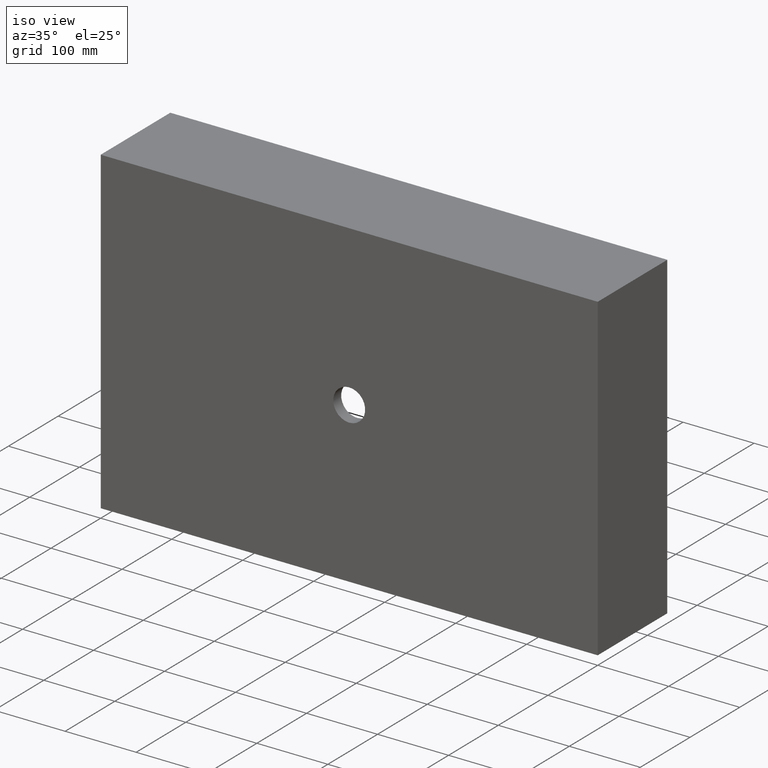
[diagram: clean part render]
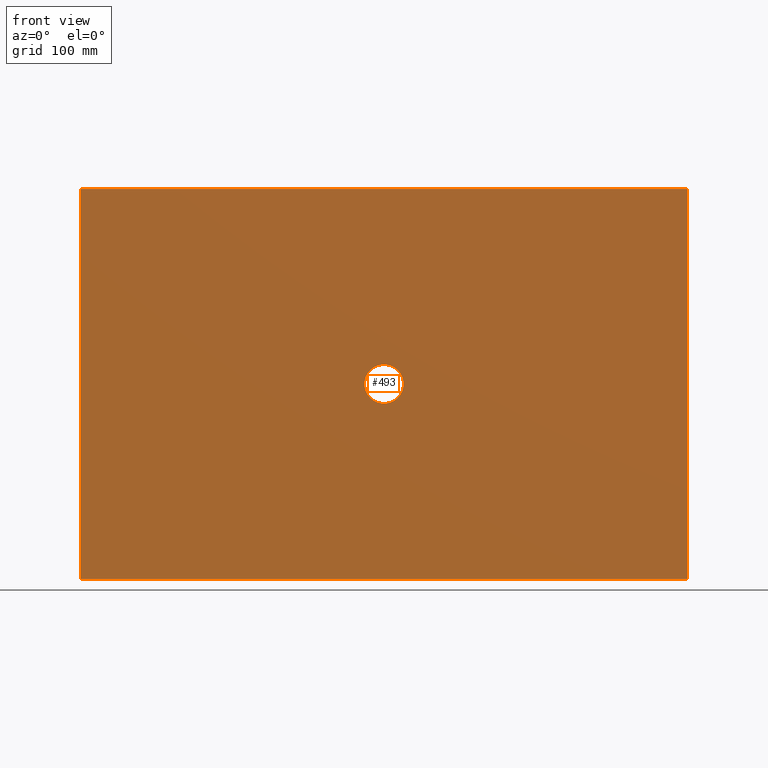
[diagram: tour spotlight — one face highlighted and labeled with its STEP entity id]
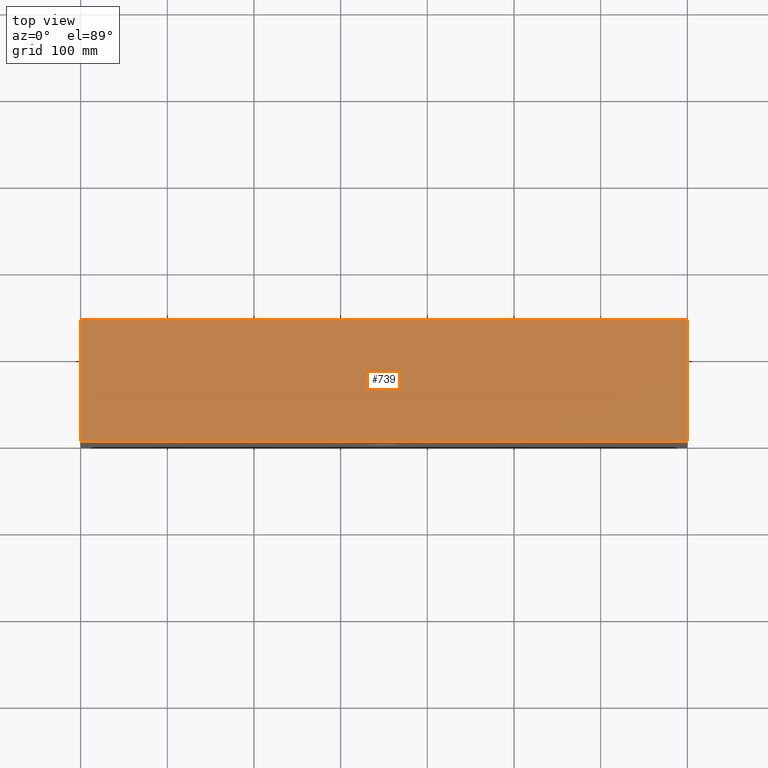
[diagram: tour spotlight — one face highlighted and labeled with its STEP entity id]
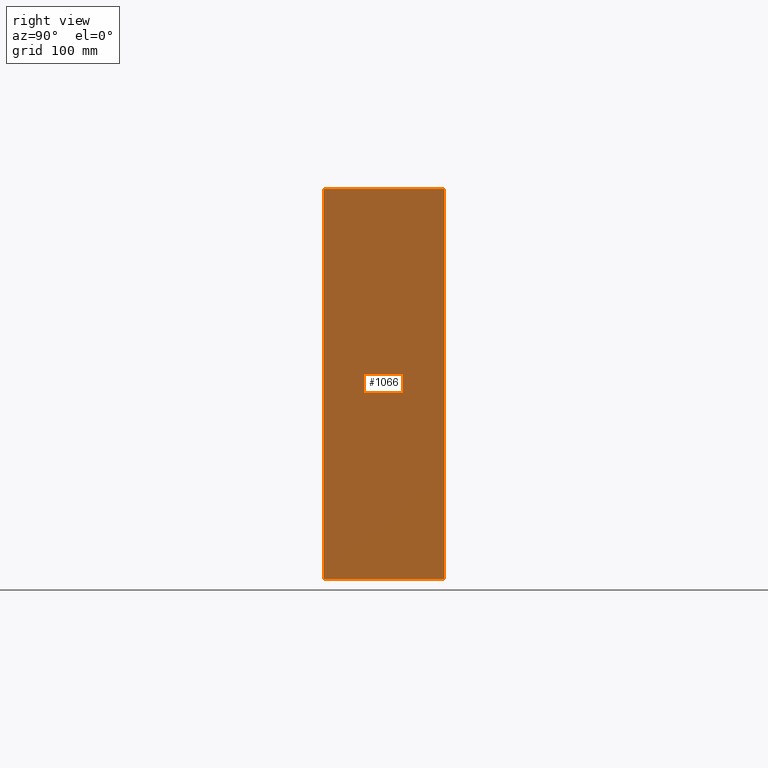
[diagram: tour spotlight — one face highlighted and labeled with its STEP entity id]
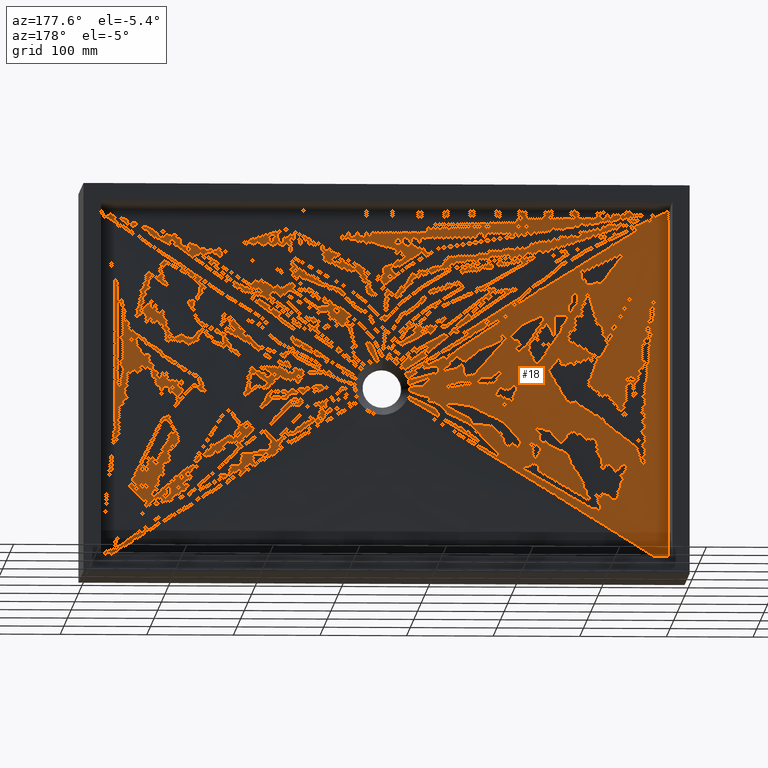
[diagram: tour spotlight — one face highlighted and labeled with its STEP entity id]
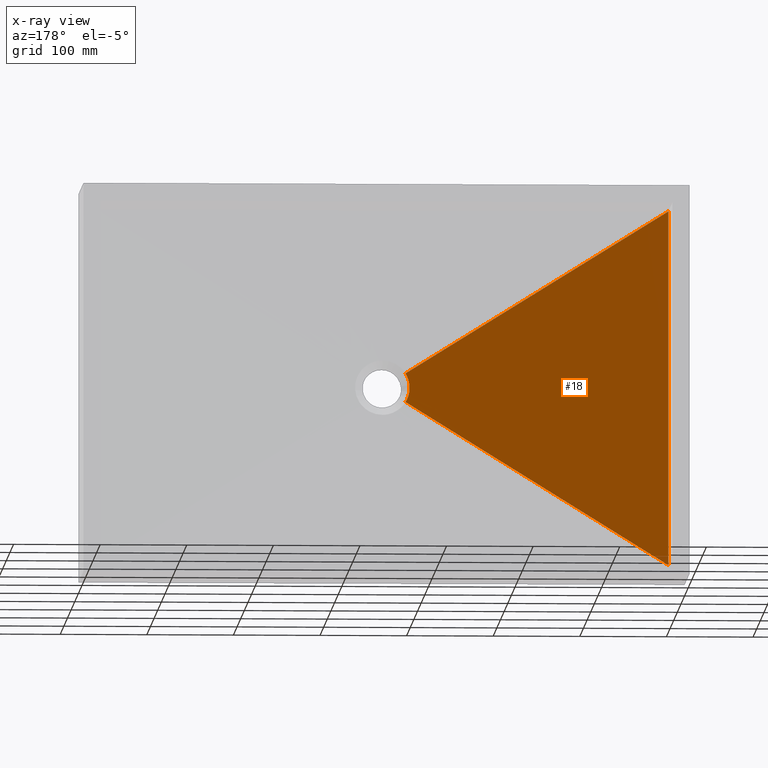
[diagram: x-ray of the same camera — body ghosted, this tour face saturated]
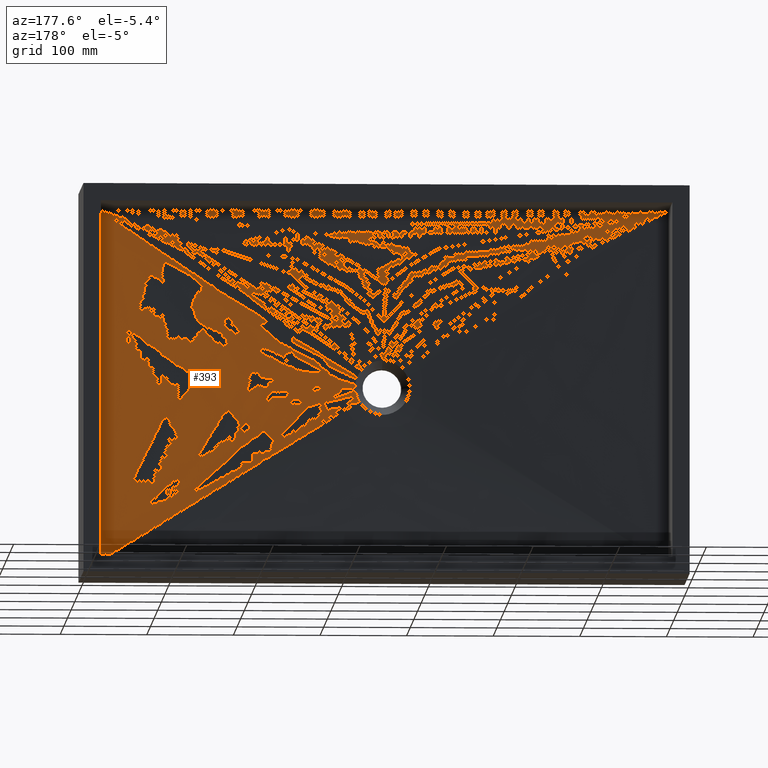
[diagram: tour spotlight — one face highlighted and labeled with its STEP entity id]
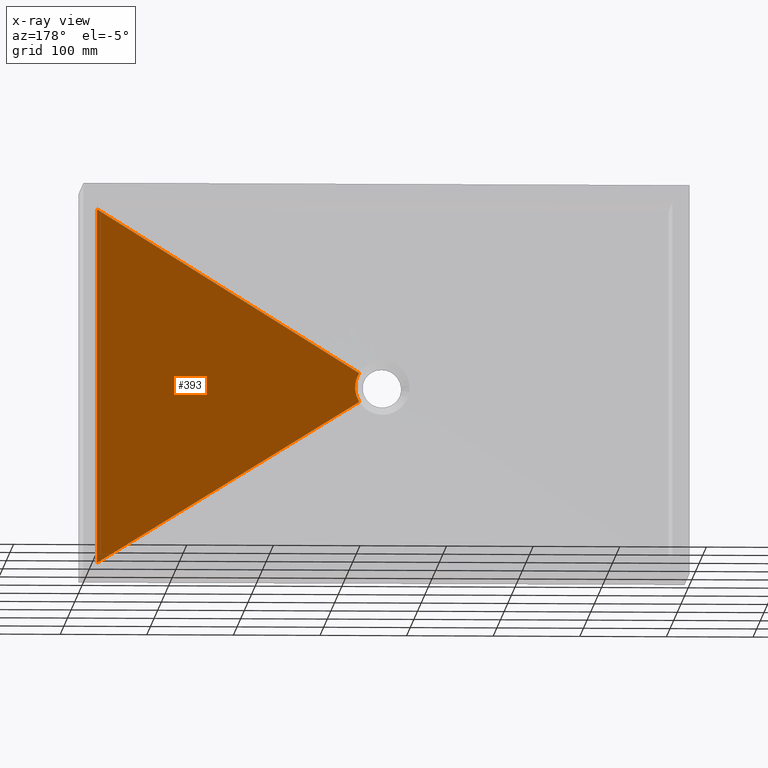
[diagram: x-ray of the same camera — body ghosted, this tour face saturated]
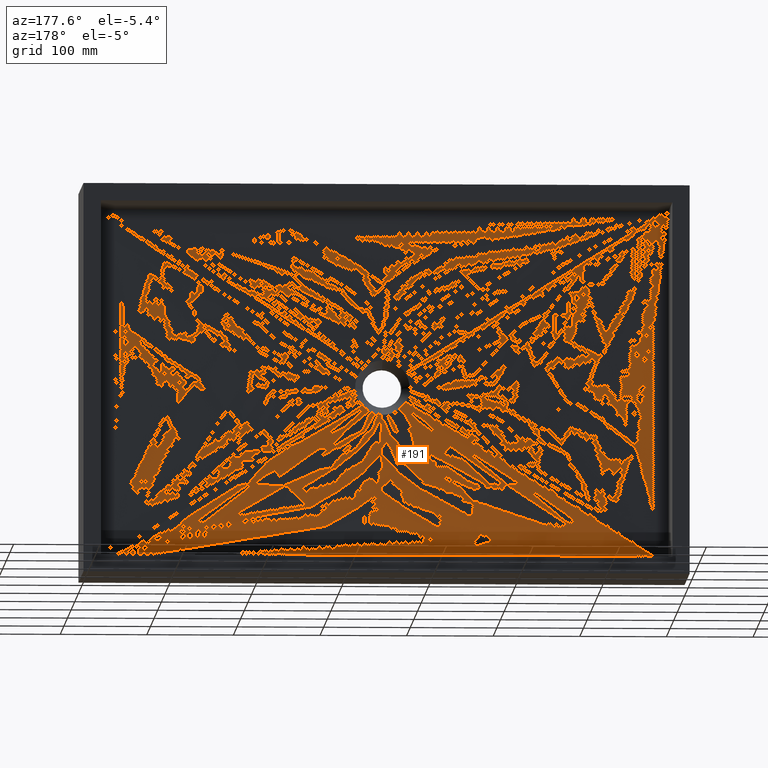
[diagram: tour spotlight — one face highlighted and labeled with its STEP entity id]
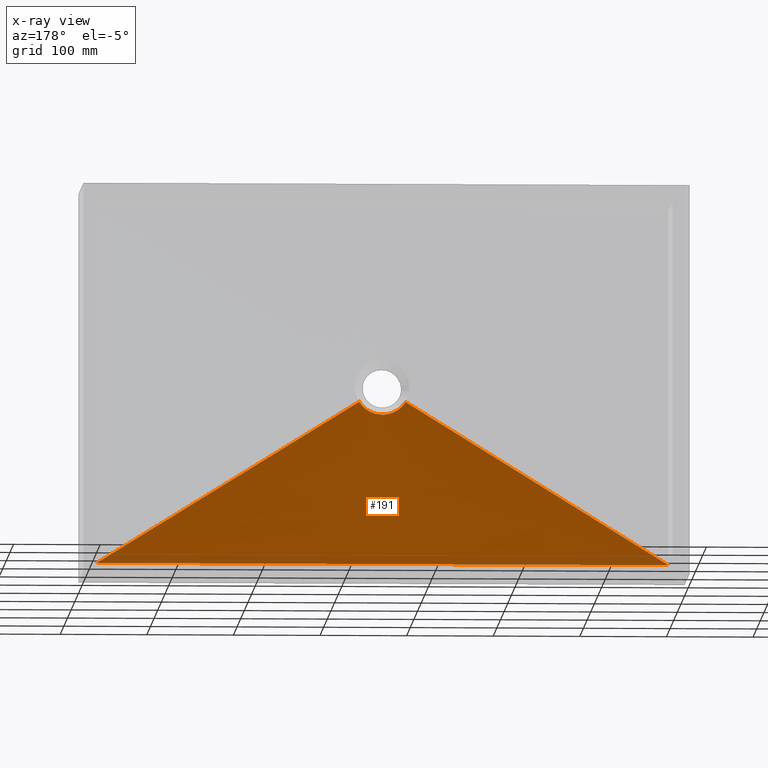
[diagram: x-ray of the same camera — body ghosted, this tour face saturated]
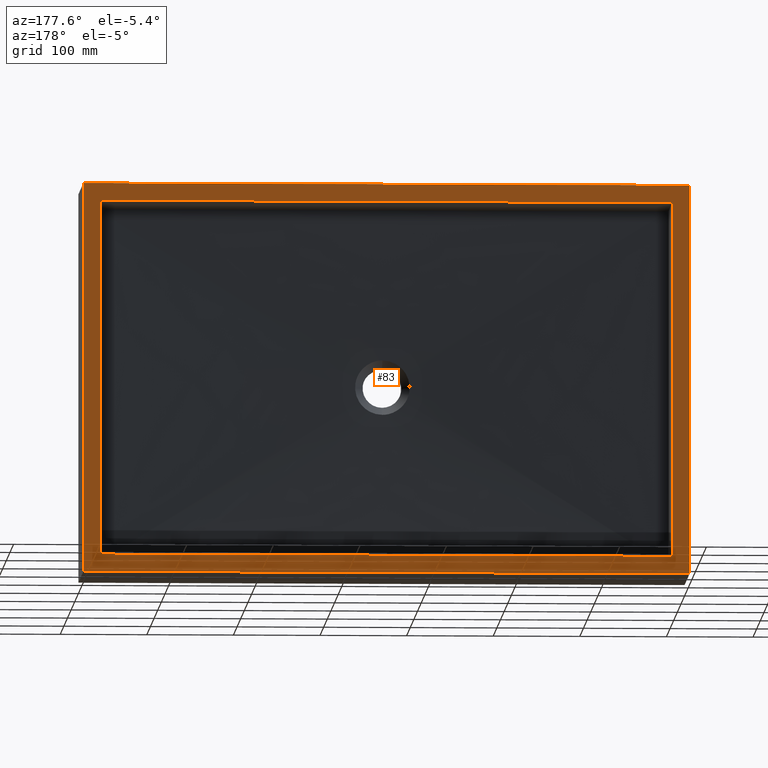
[diagram: tour spotlight — one face highlighted and labeled with its STEP entity id]
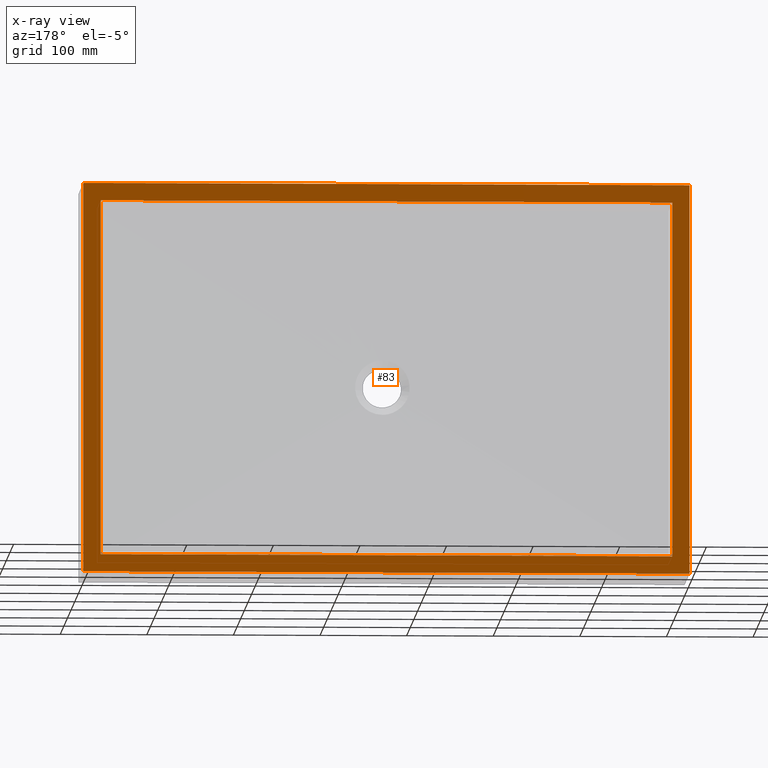
[diagram: x-ray of the same camera — body ghosted, this tour face saturated]
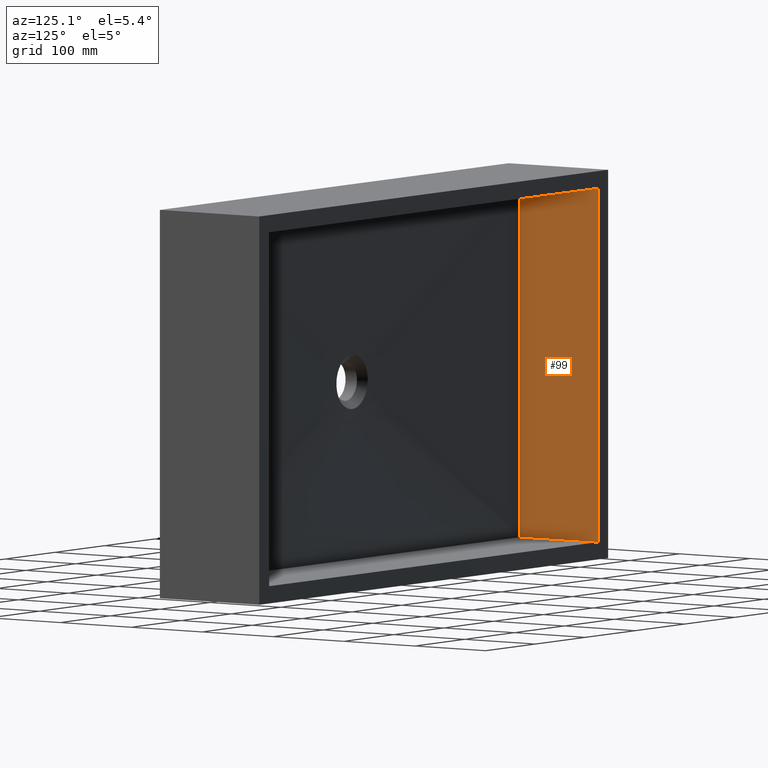
[diagram: tour spotlight — one face highlighted and labeled with its STEP entity id]
A machine part: a face-by-face anatomy tour. The part has 22 B-rep faces; the first image is the clean iso view, then the 8 largest visible faces are spotlighted one at a time (largest first), each with its STEP entity span.

Face 1 — front view, entity #493. In plain terms, the highlighted planar face has unit normal (0, -1, 0).
Definition (entity closure, byte-faithful):
#2 = CARTESIAN_POINT ( 'NONE',  ( 0.0000000000000000000, 0.0000000000000000000, 0.0000000000000000000 ) ) ;
#57 = ORIENTED_EDGE ( 'NONE', *, *, #692, .F. ) ;
#61 = EDGE_CURVE ( 'NONE', #1167, #590, #1038, .T. ) ;
#67 = CIRCLE ( 'NONE', #116, 22.50000000000004600 ) ;
#77 = VECTOR ( 'NONE', #325, 1000.000000000000000 ) ;
#110 = CARTESIAN_POINT ( 'NONE',  ( 700.0000000000000000, 0.0000000000000000000, -450.0000000000000000 ) ) ;
#116 = AXIS2_PLACEMENT_3D ( 'NONE', #932, #190, #901 ) ;
#123 = EDGE_CURVE ( 'NONE', #494, #146, #538, .T. ) ;
#138 = LINE ( 'NONE', #159, #77 ) ;
#143 = EDGE_LOOP ( 'NONE', ( #1151, #961 ) ) ;
#146 = VERTEX_POINT ( 'NONE', #629 ) ;
#159 = CARTESIAN_POINT ( 'NONE',  ( 700.0000000000000000, 0.0000000000000000000, 0.0000000000000000000 ) ) ;
#163 = CARTESIAN_POINT ( 'NONE',  ( 0.0000000000000000000, 0.0000000000000000000, -450.0000000000000000 ) ) ;
#190 = DIRECTION ( 'NONE',  ( -0.0000000000000000000, 1.000000000000000000, -0.0000000000000000000 ) ) ;
#192 = FACE_OUTER_BOUND ( 'NONE', #516, .T. ) ;
#214 = VECTOR ( 'NONE', #341, 1000.000000000000000 ) ;
#221 = ORIENTED_EDGE ( 'NONE', *, *, #684, .F. ) ;
#224 = LINE ( 'NONE', #922, #214 ) ;
#255 = PLANE ( 'NONE',  #513 ) ;
#275 = CARTESIAN_POINT ( 'NONE',  ( 0.0000000000000000000, 0.0000000000000000000, -450.0000000000000000 ) ) ;
#303 = CARTESIAN_POINT ( 'NONE',  ( 0.0000000000000000000, 0.0000000000000000000, 0.0000000000000000000 ) ) ;
#325 = DIRECTION ( 'NONE',  ( 0.0000000000000000000, 0.0000000000000000000, -1.000000000000000000 ) ) ;
#329 = EDGE_CURVE ( 'NONE', #146, #494, #67, .T. ) ;
#341 = DIRECTION ( 'NONE',  ( -0.0000000000000000000, -0.0000000000000000000, 1.000000000000000000 ) ) ;
#374 = LINE ( 'NONE', #275, #1018 ) ;
#417 = DIRECTION ( 'NONE',  ( 1.000000000000000000, 0.0000000000000000000, 0.0000000000000000000 ) ) ;
#493 = ADVANCED_FACE ( 'NONE', ( #767, #192 ), #255, .T. ) ;
#494 = VERTEX_POINT ( 'NONE', #598 ) ;
#502 = VECTOR ( 'NONE', #417, 1000.000000000000000 ) ;
#513 = AXIS2_PLACEMENT_3D ( 'NONE', #163, #607, #640 ) ;
#516 = EDGE_LOOP ( 'NONE', ( #57, #1153, #221, #1166 ) ) ;
#538 = CIRCLE ( 'NONE', #871, 22.50000000000004600 ) ;
#590 = VERTEX_POINT ( 'NONE', #947 ) ;
#598 = CARTESIAN_POINT ( 'NONE',  ( 350.0000000000000600, 0.0000000000000000000, -247.5000000000001100 ) ) ;
#607 = DIRECTION ( 'NONE',  ( 0.0000000000000000000, -1.000000000000000000, 0.0000000000000000000 ) ) ;
#629 = CARTESIAN_POINT ( 'NONE',  ( 350.0000000000000600, 0.0000000000000000000, -202.5000000000000000 ) ) ;
#640 = DIRECTION ( 'NONE',  ( 0.0000000000000000000, -0.0000000000000000000, -1.000000000000000000 ) ) ;
#684 = EDGE_CURVE ( 'NONE', #590, #1082, #138, .T. ) ;
#692 = EDGE_CURVE ( 'NONE', #1191, #1167, #224, .T. ) ;
#767 = FACE_BOUND ( 'NONE', #143, .T. ) ;
#774 = DIRECTION ( 'NONE',  ( -1.000000000000000000, -0.0000000000000000000, -0.0000000000000000000 ) ) ;
#871 = AXIS2_PLACEMENT_3D ( 'NONE', #1180, #1103, #993 ) ;
#901 = DIRECTION ( 'NONE',  ( 0.0000000000000000000, 0.0000000000000000000, -1.000000000000000000 ) ) ;
#922 = CARTESIAN_POINT ( 'NONE',  ( 0.0000000000000000000, 0.0000000000000000000, 0.0000000000000000000 ) ) ;
#932 = CARTESIAN_POINT ( 'NONE',  ( 350.0000000000000600, 0.0000000000000000000, -225.0000000000000600 ) ) ;
#947 = CARTESIAN_POINT ( 'NONE',  ( 700.0000000000000000, 0.0000000000000000000, 0.0000000000000000000 ) ) ;
#961 = ORIENTED_EDGE ( 'NONE', *, *, #123, .T. ) ;
#993 = DIRECTION ( 'NONE',  ( 0.0000000000000000000, 0.0000000000000000000, -1.000000000000000000 ) ) ;
#1018 = VECTOR ( 'NONE', #774, 1000.000000000000000 ) ;
#1038 = LINE ( 'NONE', #2, #502 ) ;
#1077 = EDGE_CURVE ( 'NONE', #1082, #1191, #374, .T. ) ;
#1082 = VERTEX_POINT ( 'NONE', #110 ) ;
#1103 = DIRECTION ( 'NONE',  ( -0.0000000000000000000, 1.000000000000000000, -0.0000000000000000000 ) ) ;
#1151 = ORIENTED_EDGE ( 'NONE', *, *, #329, .T. ) ;
#1153 = ORIENTED_EDGE ( 'NONE', *, *, #1077, .F. ) ;
#1166 = ORIENTED_EDGE ( 'NONE', *, *, #61, .F. ) ;
#1167 = VERTEX_POINT ( 'NONE', #303 ) ;
#1168 = CARTESIAN_POINT ( 'NONE',  ( 0.0000000000000000000, 0.0000000000000000000, -450.0000000000000000 ) ) ;
#1180 = CARTESIAN_POINT ( 'NONE',  ( 350.0000000000000600, 0.0000000000000000000, -225.0000000000000600 ) ) ;
#1191 = VERTEX_POINT ( 'NONE', #1168 ) ;

Face 2 — top view, entity #739. In plain terms, the highlighted planar face has unit normal (0, 0, -1).
Definition (entity closure, byte-faithful):
#2 = CARTESIAN_POINT ( 'NONE',  ( 0.0000000000000000000, 0.0000000000000000000, 0.0000000000000000000 ) ) ;
#12 = ORIENTED_EDGE ( 'NONE', *, *, #61, .T. ) ;
#14 = EDGE_CURVE ( 'NONE', #429, #590, #1114, .T. ) ;
#56 = VECTOR ( 'NONE', #967, 1000.000000000000000 ) ;
#61 = EDGE_CURVE ( 'NONE', #1167, #590, #1038, .T. ) ;
#87 = VECTOR ( 'NONE', #544, 1000.000000000000000 ) ;
#225 = EDGE_LOOP ( 'NONE', ( #12, #324, #1085, #229 ) ) ;
#229 = ORIENTED_EDGE ( 'NONE', *, *, #642, .T. ) ;
#251 = AXIS2_PLACEMENT_3D ( 'NONE', #883, #795, #660 ) ;
#282 = CARTESIAN_POINT ( 'NONE',  ( 700.0000000000000000, 140.0000000000000000, 0.0000000000000000000 ) ) ;
#303 = CARTESIAN_POINT ( 'NONE',  ( 0.0000000000000000000, 0.0000000000000000000, 0.0000000000000000000 ) ) ;
#324 = ORIENTED_EDGE ( 'NONE', *, *, #14, .F. ) ;
#379 = VERTEX_POINT ( 'NONE', #895 ) ;
#417 = DIRECTION ( 'NONE',  ( 1.000000000000000000, 0.0000000000000000000, 0.0000000000000000000 ) ) ;
#421 = CARTESIAN_POINT ( 'NONE',  ( 0.0000000000000000000, 140.0000000000000000, 0.0000000000000000000 ) ) ;
#429 = VERTEX_POINT ( 'NONE', #985 ) ;
#502 = VECTOR ( 'NONE', #417, 1000.000000000000000 ) ;
#505 = PLANE ( 'NONE',  #251 ) ;
#520 = EDGE_CURVE ( 'NONE', #379, #429, #545, .T. ) ;
#544 = DIRECTION ( 'NONE',  ( -0.0000000000000000000, -1.000000000000000000, -0.0000000000000000000 ) ) ;
#545 = LINE ( 'NONE', #751, #982 ) ;
#546 = FACE_OUTER_BOUND ( 'NONE', #225, .T. ) ;
#590 = VERTEX_POINT ( 'NONE', #947 ) ;
#642 = EDGE_CURVE ( 'NONE', #379, #1167, #864, .T. ) ;
#660 = DIRECTION ( 'NONE',  ( -1.000000000000000000, 0.0000000000000000000, -0.0000000000000000000 ) ) ;
#739 = ADVANCED_FACE ( 'NONE', ( #546 ), #505, .F. ) ;
#751 = CARTESIAN_POINT ( 'NONE',  ( 0.0000000000000000000, 140.0000000000000000, 0.0000000000000000000 ) ) ;
#795 = DIRECTION ( 'NONE',  ( 0.0000000000000000000, 0.0000000000000000000, -1.000000000000000000 ) ) ;
#864 = LINE ( 'NONE', #421, #87 ) ;
#883 = CARTESIAN_POINT ( 'NONE',  ( 0.0000000000000000000, 140.0000000000000000, 0.0000000000000000000 ) ) ;
#895 = CARTESIAN_POINT ( 'NONE',  ( 0.0000000000000000000, 140.0000000000000000, 0.0000000000000000000 ) ) ;
#925 = DIRECTION ( 'NONE',  ( 1.000000000000000000, 0.0000000000000000000, 0.0000000000000000000 ) ) ;
#947 = CARTESIAN_POINT ( 'NONE',  ( 700.0000000000000000, 0.0000000000000000000, 0.0000000000000000000 ) ) ;
#967 = DIRECTION ( 'NONE',  ( -0.0000000000000000000, -1.000000000000000000, -0.0000000000000000000 ) ) ;
#982 = VECTOR ( 'NONE', #925, 1000.000000000000000 ) ;
#985 = CARTESIAN_POINT ( 'NONE',  ( 700.0000000000000000, 140.0000000000000000, 0.0000000000000000000 ) ) ;
#1038 = LINE ( 'NONE', #2, #502 ) ;
#1085 = ORIENTED_EDGE ( 'NONE', *, *, #520, .F. ) ;
#1114 = LINE ( 'NONE', #282, #56 ) ;
#1167 = VERTEX_POINT ( 'NONE', #303 ) ;

Face 3 — right view, entity #1066. In plain terms, the highlighted planar face has unit normal (-1, 0, 0).
Definition (entity closure, byte-faithful):
#14 = EDGE_CURVE ( 'NONE', #429, #590, #1114, .T. ) ;
#42 = CARTESIAN_POINT ( 'NONE',  ( 700.0000000000000000, 140.0000000000000000, -450.0000000000000000 ) ) ;
#50 = CARTESIAN_POINT ( 'NONE',  ( 700.0000000000000000, 140.0000000000000000, 0.0000000000000000000 ) ) ;
#56 = VECTOR ( 'NONE', #967, 1000.000000000000000 ) ;
#77 = VECTOR ( 'NONE', #325, 1000.000000000000000 ) ;
#110 = CARTESIAN_POINT ( 'NONE',  ( 700.0000000000000000, 0.0000000000000000000, -450.0000000000000000 ) ) ;
#138 = LINE ( 'NONE', #159, #77 ) ;
#139 = ORIENTED_EDGE ( 'NONE', *, *, #271, .F. ) ;
#159 = CARTESIAN_POINT ( 'NONE',  ( 700.0000000000000000, 0.0000000000000000000, 0.0000000000000000000 ) ) ;
#242 = EDGE_CURVE ( 'NONE', #353, #1082, #1049, .T. ) ;
#243 = PLANE ( 'NONE',  #534 ) ;
#259 = DIRECTION ( 'NONE',  ( 0.0000000000000000000, 0.0000000000000000000, -1.000000000000000000 ) ) ;
#271 = EDGE_CURVE ( 'NONE', #429, #353, #697, .T. ) ;
#282 = CARTESIAN_POINT ( 'NONE',  ( 700.0000000000000000, 140.0000000000000000, 0.0000000000000000000 ) ) ;
#300 = ORIENTED_EDGE ( 'NONE', *, *, #684, .T. ) ;
#325 = DIRECTION ( 'NONE',  ( 0.0000000000000000000, 0.0000000000000000000, -1.000000000000000000 ) ) ;
#353 = VERTEX_POINT ( 'NONE', #905 ) ;
#418 = DIRECTION ( 'NONE',  ( -1.000000000000000000, 0.0000000000000000000, 0.0000000000000000000 ) ) ;
#429 = VERTEX_POINT ( 'NONE', #985 ) ;
#482 = DIRECTION ( 'NONE',  ( 0.0000000000000000000, 0.0000000000000000000, 1.000000000000000000 ) ) ;
#485 = ORIENTED_EDGE ( 'NONE', *, *, #242, .F. ) ;
#534 = AXIS2_PLACEMENT_3D ( 'NONE', #786, #418, #482 ) ;
#560 = FACE_OUTER_BOUND ( 'NONE', #755, .T. ) ;
#590 = VERTEX_POINT ( 'NONE', #947 ) ;
#632 = DIRECTION ( 'NONE',  ( -0.0000000000000000000, -1.000000000000000000, -0.0000000000000000000 ) ) ;
#684 = EDGE_CURVE ( 'NONE', #590, #1082, #138, .T. ) ;
#697 = LINE ( 'NONE', #50, #803 ) ;
#755 = EDGE_LOOP ( 'NONE', ( #300, #485, #139, #1024 ) ) ;
#786 = CARTESIAN_POINT ( 'NONE',  ( 700.0000000000000000, 140.0000000000000000, 0.0000000000000000000 ) ) ;
#803 = VECTOR ( 'NONE', #259, 1000.000000000000000 ) ;
#905 = CARTESIAN_POINT ( 'NONE',  ( 700.0000000000000000, 140.0000000000000000, -450.0000000000000000 ) ) ;
#947 = CARTESIAN_POINT ( 'NONE',  ( 700.0000000000000000, 0.0000000000000000000, 0.0000000000000000000 ) ) ;
#967 = DIRECTION ( 'NONE',  ( -0.0000000000000000000, -1.000000000000000000, -0.0000000000000000000 ) ) ;
#985 = CARTESIAN_POINT ( 'NONE',  ( 700.0000000000000000, 140.0000000000000000, 0.0000000000000000000 ) ) ;
#1024 = ORIENTED_EDGE ( 'NONE', *, *, #14, .T. ) ;
#1049 = LINE ( 'NONE', #42, #1219 ) ;
#1066 = ADVANCED_FACE ( 'NONE', ( #560 ), #243, .F. ) ;
#1082 = VERTEX_POINT ( 'NONE', #110 ) ;
#1114 = LINE ( 'NONE', #282, #56 ) ;
#1219 = VECTOR ( 'NONE', #632, 1000.000000000000000 ) ;

Face 4 — auxiliary view, entity #18. An x-ray twin of the same camera follows (body ghosted, this face saturated) — the face is partly hidden behind the body. In plain terms, the highlighted face is a freeform B-spline surface patch.
Definition (entity closure, byte-faithful):
#7 = B_SPLINE_CURVE_WITH_KNOTS ( 'NONE', 3,
 ( #781, #55, #1147, #924 ),
 .UNSPECIFIED., .F., .F.,
 ( 4, 4 ),
 ( 0.0000000000000000000, 1.000000000000000000 ),
 .UNSPECIFIED. ) ;
#15 = VERTEX_POINT ( 'NONE', #308 ) ;
#18 = ADVANCED_FACE ( 'NONE', ( #1165 ), #378, .F. ) ;
#32 = LINE ( 'NONE', #1216, #587 ) ;
#55 = CARTESIAN_POINT ( 'NONE',  ( 321.8447380547628400, 25.00000000000000400, -239.1979867931709400 ) ) ;
#58 = CARTESIAN_POINT ( 'NONE',  ( 320.1671080139870500, 25.00000000000000700, -214.7821852417416200 ) ) ;
#70 = CARTESIAN_POINT ( 'NONE',  ( 318.5000000000000600, 25.00000000000000700, -226.4979317703671000 ) ) ;
#94 = EDGE_LOOP ( 'NONE', ( #818, #969, #1150, #102, #698 ) ) ;
#102 = ORIENTED_EDGE ( 'NONE', *, *, #440, .F. ) ;
#153 = CARTESIAN_POINT ( 'NONE',  ( 19.99999999999999600, 30.00000000000000000, -293.3333333333328600 ) ) ;
#169 = CARTESIAN_POINT ( 'NONE',  ( 322.5116704946697700, 25.00000000000000400, -209.5545983375979800 ) ) ;
#175 = VECTOR ( 'NONE', #533, 1000.000000000000000 ) ;
#178 = CARTESIAN_POINT ( 'NONE',  ( 323.2426005924004400, 25.00000000000000000, -208.3779791558851900 ) ) ;
#179 = CARTESIAN_POINT ( 'NONE',  ( 321.8447380547628400, 25.00000000000000400, -210.8020132068291400 ) ) ;
#182 = CARTESIAN_POINT ( 'NONE',  ( 19.99999999999999600, 30.00000000000000000, -37.08333333333335700 ) ) ;
#220 = CARTESIAN_POINT ( 'NONE',  ( 19.99999999999999600, 30.00000000000000000, -105.4166666666664000 ) ) ;
#226 = CARTESIAN_POINT ( 'NONE',  ( 19.99999999999999600, 30.00000000000000000, -361.6666666666663400 ) ) ;
#231 = CARTESIAN_POINT ( 'NONE',  ( 323.2426005924004400, 25.00000000000000000, -208.3779791558851900 ) ) ;
#235 = CARTESIAN_POINT ( 'NONE',  ( 321.2585655090563800, 25.00000000000000000, -237.8910799936545000 ) ) ;
#237 = VERTEX_POINT ( 'NONE', #235 ) ;
#270 = CARTESIAN_POINT ( 'NONE',  ( 19.99999999999999600, 30.00000000000000400, -395.8333333333331400 ) ) ;
#273 = CARTESIAN_POINT ( 'NONE',  ( 320.6723928067730200, 24.99999999999999600, -236.5841728450399700 ) ) ;
#279 = CARTESIAN_POINT ( 'NONE',  ( 321.8447380547628400, 25.00000000000000400, -239.1979867931709400 ) ) ;
#281 = CARTESIAN_POINT ( 'NONE',  ( 19.99999999999999600, 30.00000000000000400, -412.9166666666665700 ) ) ;
#288 = CARTESIAN_POINT ( 'NONE',  ( 322.5116704946697700, 25.00000000000000400, -240.4454016624021300 ) ) ;
#292 = CARTESIAN_POINT ( 'NONE',  ( 321.2585655090563800, 25.00000000000000000, -237.8910799936545000 ) ) ;
#297 = CARTESIAN_POINT ( 'NONE',  ( 19.99999999999999600, 30.00000000000000000, -156.6666666666662300 ) ) ;
#304 = CARTESIAN_POINT ( 'NONE',  ( 319.0304572677870900, 25.00000000000000000, -230.9463066530420600 ) ) ;
#308 = CARTESIAN_POINT ( 'NONE',  ( 20.00000000000001800, 30.00000000000002800, -430.0000000000000000 ) ) ;
#315 = CARTESIAN_POINT ( 'NONE',  ( 323.2426005924004400, 25.00000000000000000, -241.6220208441149300 ) ) ;
#328 = CARTESIAN_POINT ( 'NONE',  ( 20.00000000000000000, 30.00000000000000000, -242.0833333333328000 ) ) ;
#350 = CARTESIAN_POINT ( 'NONE',  ( 320.6723928067730200, 24.99999999999999600, -236.5841728450399700 ) ) ;
#352 = CARTESIAN_POINT ( 'NONE',  ( 319.3460860394343400, 24.99999999999999600, -232.3988337987440200 ) ) ;
#354 = CARTESIAN_POINT ( 'NONE',  ( 319.0304572677870900, 25.00000000000000000, -230.9463066530420600 ) ) ;
#355 = CARTESIAN_POINT ( 'NONE',  ( 318.6073830098105200, 24.99999999999999600, -227.9957867683870600 ) ) ;
#360 = CARTESIAN_POINT ( 'NONE',  ( 319.3460860394343400, 25.00000000000000400, -217.6011662012561500 ) ) ;
#363 = CARTESIAN_POINT ( 'NONE',  ( 320.6723928067731300, 25.00000000000000000, -213.4158271549601700 ) ) ;
#366 = CARTESIAN_POINT ( 'NONE',  ( 321.8447380547628400, 25.00000000000000400, -210.8020132068291400 ) ) ;
#378 = B_SPLINE_SURFACE_WITH_KNOTS ( 'NONE', 3, 1, ( 
 ( #315, #426 ),
 ( #288, #281 ),
 ( #279, #270 ),
 ( #273, #226 ),
 ( #946, #1207 ),
 ( #1195, #1190 ),
 ( #304, #153 ),
 ( #402, #578 ),
 ( #802, #328 ),
 ( #401, #1039 ),
 ( #779, #433 ),
 ( #745, #297 ),
 ( #972, #539 ),
 ( #1061, #220 ),
 ( #1052, #974 ),
 ( #179, #415 ),
 ( #169, #182 ),
 ( #420, #1202 ) ),
 .UNSPECIFIED., .F., .F., .F.,
 ( 4, 2, 2, 2, 2, 2, 2, 2, 4 ),
 ( 2, 2 ),
 ( 0.0000000000000000000, 0.1250000000000000000, 0.2500000000000000000, 0.3750000000000000000, 0.5000000000000000000, 0.6250000000000000000, 0.7500000000000000000, 0.8750000000000000000, 1.000000000000000000 ),
 ( 0.0000000000000000000, 1.000000000000000000 ),
 .UNSPECIFIED. ) ;
#380 = CARTESIAN_POINT ( 'NONE',  ( 171.6213002962002500, 27.50000000000000400, -114.1889895779425900 ) ) ;
#394 = VERTEX_POINT ( 'NONE', #231 ) ;
#401 = CARTESIAN_POINT ( 'NONE',  ( 318.4999999999999400, 25.00000000000000400, -223.5020682296331200 ) ) ;
#402 = CARTESIAN_POINT ( 'NONE',  ( 318.6073830098105200, 24.99999999999999600, -227.9957867683870600 ) ) ;
#415 = CARTESIAN_POINT ( 'NONE',  ( 19.99999999999999600, 30.00000000000000000, -54.16666666666660700 ) ) ;
#420 = CARTESIAN_POINT ( 'NONE',  ( 323.2426005924004400, 25.00000000000000000, -208.3779791558851900 ) ) ;
#426 = CARTESIAN_POINT ( 'NONE',  ( 20.00000000000000000, 30.00000000000000400, -430.0000000000000000 ) ) ;
#433 = CARTESIAN_POINT ( 'NONE',  ( 19.99999999999999600, 30.00000000000000000, -190.8333333333328300 ) ) ;
#440 = EDGE_CURVE ( 'NONE', #1060, #15, #32, .T. ) ;
#442 = CARTESIAN_POINT ( 'NONE',  ( 322.5116704946697700, 25.00000000000000400, -209.5545983375979800 ) ) ;
#463 = CARTESIAN_POINT ( 'NONE',  ( 171.6213002962002500, 27.50000000000000400, -335.8110104220574500 ) ) ;
#533 = DIRECTION ( 'NONE',  ( 0.8493579470568617400, -0.01400459476006333400, -0.5276314519595658400 ) ) ;
#539 = CARTESIAN_POINT ( 'NONE',  ( 19.99999999999999600, 30.00000000000000000, -139.5833333333329400 ) ) ;
#563 = LINE ( 'NONE', #463, #1032 ) ;
#566 = CARTESIAN_POINT ( 'NONE',  ( 318.6073830098105200, 25.00000000000000000, -222.0042132316130500 ) ) ;
#578 = CARTESIAN_POINT ( 'NONE',  ( 19.99999999999999600, 30.00000000000000000, -259.1666666666661200 ) ) ;
#585 = CARTESIAN_POINT ( 'NONE',  ( 319.0304572677870900, 25.00000000000000400, -219.0536933469580000 ) ) ;
#587 = VECTOR ( 'NONE', #1044, 1000.000000000000000 ) ;
#609 = EDGE_CURVE ( 'NONE', #1060, #394, #1015, .T. ) ;
#627 = EDGE_CURVE ( 'NONE', #394, #237, #753, .T. ) ;
#698 = ORIENTED_EDGE ( 'NONE', *, *, #609, .T. ) ;
#745 = CARTESIAN_POINT ( 'NONE',  ( 319.0304572677870900, 25.00000000000000400, -219.0536933469580000 ) ) ;
#753 = B_SPLINE_CURVE_WITH_KNOTS ( 'NONE', 3,
 ( #178, #442, #366, #363, #58, #360, #585, #566, #1099, #70, #355, #354, #352, #965, #350, #292 ),
 .UNSPECIFIED., .F., .F.,
 ( 4, 2, 2, 2, 2, 2, 2, 4 ),
 ( 0.0000000000000000000, 0.1428571419485792900, 0.2857142838971585800, 0.4285714258457378700, 0.5714285677943171700, 0.7142857097428965100, 0.8571428516914757500, 1.000000000000000000 ),
 .UNSPECIFIED. ) ;
#779 = CARTESIAN_POINT ( 'NONE',  ( 318.6073830098105200, 25.00000000000000000, -222.0042132316130500 ) ) ;
#781 = CARTESIAN_POINT ( 'NONE',  ( 321.2585655090563800, 25.00000000000000000, -237.8910799936545000 ) ) ;
#802 = CARTESIAN_POINT ( 'NONE',  ( 318.5000000000000600, 25.00000000000000700, -226.4979317703671000 ) ) ;
#818 = ORIENTED_EDGE ( 'NONE', *, *, #627, .T. ) ;
#924 = CARTESIAN_POINT ( 'NONE',  ( 323.2426005924004400, 25.00000000000000000, -241.6220208441149300 ) ) ;
#946 = CARTESIAN_POINT ( 'NONE',  ( 320.1671080139870500, 25.00000000000000400, -235.2178147582585300 ) ) ;
#965 = CARTESIAN_POINT ( 'NONE',  ( 320.1671080139870500, 25.00000000000000400, -235.2178147582585300 ) ) ;
#969 = ORIENTED_EDGE ( 'NONE', *, *, #1200, .T. ) ;
#972 = CARTESIAN_POINT ( 'NONE',  ( 319.3460860394343400, 25.00000000000000400, -217.6011662012561500 ) ) ;
#974 = CARTESIAN_POINT ( 'NONE',  ( 19.99999999999999600, 30.00000000000000000, -88.33333333333313000 ) ) ;
#1015 = LINE ( 'NONE', #380, #175 ) ;
#1032 = VECTOR ( 'NONE', #1124, 1000.000000000000200 ) ;
#1039 = CARTESIAN_POINT ( 'NONE',  ( 19.99999999999999600, 30.00000000000000000, -207.9166666666661500 ) ) ;
#1044 = DIRECTION ( 'NONE',  ( 2.030895776753327800E-016, -0.0000000000000000000, -1.000000000000000000 ) ) ;
#1051 = CARTESIAN_POINT ( 'NONE',  ( 323.2426005924004400, 25.00000000000000000, -241.6220208441149300 ) ) ;
#1052 = CARTESIAN_POINT ( 'NONE',  ( 320.6723928067731300, 25.00000000000000000, -213.4158271549601700 ) ) ;
#1060 = VERTEX_POINT ( 'NONE', #1203 ) ;
#1061 = CARTESIAN_POINT ( 'NONE',  ( 320.1671080139870500, 25.00000000000000700, -214.7821852417416200 ) ) ;
#1094 = EDGE_CURVE ( 'NONE', #1129, #15, #563, .T. ) ;
#1099 = CARTESIAN_POINT ( 'NONE',  ( 318.4999999999999400, 25.00000000000000400, -223.5020682296331200 ) ) ;
#1124 = DIRECTION ( 'NONE',  ( -0.8493579470568618500, 0.01400459476006333600, -0.5276314519595655100 ) ) ;
#1129 = VERTEX_POINT ( 'NONE', #1051 ) ;
#1147 = CARTESIAN_POINT ( 'NONE',  ( 322.5116704946697700, 25.00000000000000400, -240.4454016624021300 ) ) ;
#1150 = ORIENTED_EDGE ( 'NONE', *, *, #1094, .T. ) ;
#1165 = FACE_OUTER_BOUND ( 'NONE', #94, .T. ) ;
#1190 = CARTESIAN_POINT ( 'NONE',  ( 19.99999999999999600, 30.00000000000000000, -310.4166666666662300 ) ) ;
#1195 = CARTESIAN_POINT ( 'NONE',  ( 319.3460860394343400, 24.99999999999999600, -232.3988337987440200 ) ) ;
#1200 = EDGE_CURVE ( 'NONE', #237, #1129, #7, .T. ) ;
#1202 = CARTESIAN_POINT ( 'NONE',  ( 20.00000000000000000, 30.00000000000000400, -20.00000000000012800 ) ) ;
#1203 = CARTESIAN_POINT ( 'NONE',  ( 20.00000000000000000, 30.00000000000002800, -20.00000000000000000 ) ) ;
#1207 = CARTESIAN_POINT ( 'NONE',  ( 19.99999999999999600, 30.00000000000000000, -344.5833333333330300 ) ) ;
#1216 = CARTESIAN_POINT ( 'NONE',  ( 19.99999999999999600, 30.00000000000000000, -224.9999999999994900 ) ) ;

Face 5 — auxiliary view, entity #393. An x-ray twin of the same camera follows (body ghosted, this face saturated) — the face is partly hidden behind the body. In plain terms, the highlighted face is a freeform B-spline surface patch.
Definition (entity closure, byte-faithful):
#16 = CARTESIAN_POINT ( 'NONE',  ( 378.1552619452373800, 25.00000000000000400, -210.8020132068291400 ) ) ;
#23 = CARTESIAN_POINT ( 'NONE',  ( 679.9999999999998900, 30.00000000000000000, -224.9999999999999100 ) ) ;
#30 = CARTESIAN_POINT ( 'NONE',  ( 379.3276071932270400, 25.00000000000000000, -236.5841728450399700 ) ) ;
#48 = CARTESIAN_POINT ( 'NONE',  ( 679.9999999999998900, 30.00000000000002800, -430.0000000000000000 ) ) ;
#73 = CARTESIAN_POINT ( 'NONE',  ( 381.5000000000001100, 25.00000000000000400, -226.4979317703671300 ) ) ;
#84 = EDGE_CURVE ( 'NONE', #400, #561, #457, .T. ) ;
#92 = CARTESIAN_POINT ( 'NONE',  ( 679.9999999999998900, 30.00000000000000400, -54.16666666666665700 ) ) ;
#129 = CARTESIAN_POINT ( 'NONE',  ( 381.5000000000000600, 25.00000000000000700, -223.5020682296331000 ) ) ;
#154 = ORIENTED_EDGE ( 'NONE', *, *, #84, .T. ) ;
#156 = CARTESIAN_POINT ( 'NONE',  ( 381.5000000000000600, 25.00000000000000700, -223.5020682296331000 ) ) ;
#170 = CARTESIAN_POINT ( 'NONE',  ( 679.9999999999998900, 30.00000000000000000, -242.0833333333332600 ) ) ;
#193 = VERTEX_POINT ( 'NONE', #497 ) ;
#198 = CARTESIAN_POINT ( 'NONE',  ( 380.6539139605657700, 25.00000000000000400, -232.3988337987440200 ) ) ;
#209 = LINE ( 'NONE', #978, #307 ) ;
#241 = CARTESIAN_POINT ( 'NONE',  ( 381.5000000000001100, 25.00000000000000400, -226.4979317703671300 ) ) ;
#249 = CARTESIAN_POINT ( 'NONE',  ( 378.7414344906083000, 25.00000000000000000, -212.1089200055980900 ) ) ;
#250 = CARTESIAN_POINT ( 'NONE',  ( 376.7573994075996200, 25.00000000000000000, -241.6220208441149300 ) ) ;
#263 = VERTEX_POINT ( 'NONE', #48 ) ;
#285 = CARTESIAN_POINT ( 'NONE',  ( 377.4883295053303400, 25.00000000000000400, -240.4454016624022200 ) ) ;
#296 = CARTESIAN_POINT ( 'NONE',  ( 679.9999999999998900, 30.00000000000000400, -429.9999999999998900 ) ) ;
#307 = VECTOR ( 'NONE', #508, 1000.000000000000100 ) ;
#317 = EDGE_CURVE ( 'NONE', #263, #193, #954, .T. ) ;
#332 = DIRECTION ( 'NONE',  ( 0.8493579470568619600, 0.01400459476006334300, -0.5276314519595655100 ) ) ;
#356 = EDGE_LOOP ( 'NONE', ( #154, #983, #882, #1050, #706 ) ) ;
#371 = CARTESIAN_POINT ( 'NONE',  ( 381.3926169901894800, 24.99999999999999600, -222.0042132316130500 ) ) ;
#372 = LINE ( 'NONE', #1231, #511 ) ;
#376 = CARTESIAN_POINT ( 'NONE',  ( 379.8328919860130100, 25.00000000000000700, -235.2178147582585000 ) ) ;
#393 = ADVANCED_FACE ( 'NONE', ( #1083 ), #1145, .F. ) ;
#400 = VERTEX_POINT ( 'NONE', #937 ) ;
#411 = VERTEX_POINT ( 'NONE', #569 ) ;
#457 = B_SPLINE_CURVE_WITH_KNOTS ( 'NONE', 3,
 ( #1089, #514, #865, #1184, #376, #572, #562, #1064, #73, #129, #371, #790, #715, #591, #872, #249 ),
 .UNSPECIFIED., .F., .F.,
 ( 4, 2, 2, 2, 2, 2, 2, 4 ),
 ( 0.0000000000000000000, 0.1428571419446878500, 0.2857142838893757000, 0.4285714258340635500, 0.5714285677787514000, 0.7142857097234391900, 0.8571428516681270900, 1.000000000000000000 ),
 .UNSPECIFIED. ) ;
#497 = CARTESIAN_POINT ( 'NONE',  ( 679.9999999999998900, 30.00000000000002800, -20.00000000000000000 ) ) ;
#508 = DIRECTION ( 'NONE',  ( 0.8493579470568616300, 0.01400459476006333700, 0.5276314519595660700 ) ) ;
#511 = VECTOR ( 'NONE', #332, 1000.000000000000000 ) ;
#514 = CARTESIAN_POINT ( 'NONE',  ( 377.4883295053303400, 25.00000000000000400, -240.4454016624022200 ) ) ;
#529 = EDGE_CURVE ( 'NONE', #561, #411, #762, .T. ) ;
#561 = VERTEX_POINT ( 'NONE', #691 ) ;
#562 = CARTESIAN_POINT ( 'NONE',  ( 380.9695427322130300, 25.00000000000000400, -230.9463066530420300 ) ) ;
#569 = CARTESIAN_POINT ( 'NONE',  ( 376.7573994075996200, 25.00000000000000000, -208.3779791558851900 ) ) ;
#572 = CARTESIAN_POINT ( 'NONE',  ( 380.6539139605657700, 25.00000000000000400, -232.3988337987440200 ) ) ;
#591 = CARTESIAN_POINT ( 'NONE',  ( 379.8328919860130100, 25.00000000000000400, -214.7821852417416200 ) ) ;
#616 = CARTESIAN_POINT ( 'NONE',  ( 381.3926169901894800, 25.00000000000000000, -227.9957867683871200 ) ) ;
#656 = VECTOR ( 'NONE', #837, 1000.000000000000000 ) ;
#676 = CARTESIAN_POINT ( 'NONE',  ( 376.7573994075996200, 25.00000000000000000, -208.3779791558851900 ) ) ;
#685 = CARTESIAN_POINT ( 'NONE',  ( 379.3276071932269200, 24.99999999999999600, -213.4158271549601400 ) ) ;
#691 = CARTESIAN_POINT ( 'NONE',  ( 378.7414344906083000, 25.00000000000000000, -212.1089200055980900 ) ) ;
#694 = CARTESIAN_POINT ( 'NONE',  ( 679.9999999999998900, 30.00000000000000000, -344.5833333333332600 ) ) ;
#700 = CARTESIAN_POINT ( 'NONE',  ( 377.4883295053302800, 25.00000000000000400, -209.5545983375979500 ) ) ;
#706 = ORIENTED_EDGE ( 'NONE', *, *, #929, .F. ) ;
#707 = CARTESIAN_POINT ( 'NONE',  ( 679.9999999999998900, 30.00000000000000000, -395.8333333333332600 ) ) ;
#712 = CARTESIAN_POINT ( 'NONE',  ( 377.4883295053302800, 25.00000000000000400, -209.5545983375979500 ) ) ;
#715 = CARTESIAN_POINT ( 'NONE',  ( 380.6539139605657700, 24.99999999999999600, -217.6011662012561200 ) ) ;
#729 = CARTESIAN_POINT ( 'NONE',  ( 380.6539139605657700, 24.99999999999999600, -217.6011662012561200 ) ) ;
#762 = B_SPLINE_CURVE_WITH_KNOTS ( 'NONE', 3,
 ( #833, #777, #712, #676 ),
 .UNSPECIFIED., .F., .F.,
 ( 4, 4 ),
 ( 0.0000000000000000000, 1.000000000000000000 ),
 .UNSPECIFIED. ) ;
#777 = CARTESIAN_POINT ( 'NONE',  ( 378.1552619452373800, 25.00000000000000400, -210.8020132068291400 ) ) ;
#790 = CARTESIAN_POINT ( 'NONE',  ( 380.9695427322130900, 25.00000000000000000, -219.0536933469580300 ) ) ;
#824 = CARTESIAN_POINT ( 'NONE',  ( 679.9999999999998900, 30.00000000000000000, -412.9166666666665700 ) ) ;
#833 = CARTESIAN_POINT ( 'NONE',  ( 378.7414344906083000, 25.00000000000000000, -212.1089200055980900 ) ) ;
#837 = DIRECTION ( 'NONE',  ( -0.0000000000000000000, -0.0000000000000000000, 1.000000000000000000 ) ) ;
#865 = CARTESIAN_POINT ( 'NONE',  ( 378.1552619452373300, 25.00000000000000400, -239.1979867931709700 ) ) ;
#872 = CARTESIAN_POINT ( 'NONE',  ( 379.3276071932269200, 24.99999999999999600, -213.4158271549601400 ) ) ;
#882 = ORIENTED_EDGE ( 'NONE', *, *, #892, .T. ) ;
#888 = CARTESIAN_POINT ( 'NONE',  ( 376.7573994075996200, 25.00000000000000000, -208.3779791558851900 ) ) ;
#892 = EDGE_CURVE ( 'NONE', #411, #193, #209, .T. ) ;
#900 = CARTESIAN_POINT ( 'NONE',  ( 379.8328919860130100, 25.00000000000000700, -235.2178147582585000 ) ) ;
#904 = CARTESIAN_POINT ( 'NONE',  ( 679.9999999999998900, 30.00000000000000400, -37.08333333333332900 ) ) ;
#929 = EDGE_CURVE ( 'NONE', #400, #263, #372, .T. ) ;
#937 = CARTESIAN_POINT ( 'NONE',  ( 376.7573994075996200, 25.00000000000000000, -241.6220208441149300 ) ) ;
#952 = CARTESIAN_POINT ( 'NONE',  ( 378.1552619452373300, 25.00000000000000400, -239.1979867931709700 ) ) ;
#954 = LINE ( 'NONE', #23, #656 ) ;
#978 = CARTESIAN_POINT ( 'NONE',  ( 528.3786997037998400, 27.50000000000000400, -114.1889895779425900 ) ) ;
#983 = ORIENTED_EDGE ( 'NONE', *, *, #529, .T. ) ;
#1030 = CARTESIAN_POINT ( 'NONE',  ( 679.9999999999998900, 30.00000000000000000, -310.4166666666665700 ) ) ;
#1050 = ORIENTED_EDGE ( 'NONE', *, *, #317, .F. ) ;
#1056 = CARTESIAN_POINT ( 'NONE',  ( 679.9999999999998900, 30.00000000000000000, -88.33333333333331400 ) ) ;
#1057 = CARTESIAN_POINT ( 'NONE',  ( 679.9999999999998900, 30.00000000000000000, -190.8333333333332900 ) ) ;
#1064 = CARTESIAN_POINT ( 'NONE',  ( 381.3926169901894800, 25.00000000000000000, -227.9957867683871200 ) ) ;
#1081 = CARTESIAN_POINT ( 'NONE',  ( 380.9695427322130900, 25.00000000000000000, -219.0536933469580300 ) ) ;
#1083 = FACE_OUTER_BOUND ( 'NONE', #356, .T. ) ;
#1086 = CARTESIAN_POINT ( 'NONE',  ( 679.9999999999998900, 30.00000000000000000, -156.6666666666666300 ) ) ;
#1088 = CARTESIAN_POINT ( 'NONE',  ( 381.3926169901894800, 24.99999999999999600, -222.0042132316130500 ) ) ;
#1089 = CARTESIAN_POINT ( 'NONE',  ( 376.7573994075996200, 25.00000000000000000, -241.6220208441149300 ) ) ;
#1091 = CARTESIAN_POINT ( 'NONE',  ( 679.9999999999998900, 30.00000000000000000, -139.5833333333332900 ) ) ;
#1092 = CARTESIAN_POINT ( 'NONE',  ( 679.9999999999998900, 30.00000000000000000, -207.9166666666666000 ) ) ;
#1119 = CARTESIAN_POINT ( 'NONE',  ( 679.9999999999998900, 30.00000000000000000, -259.1666666666666300 ) ) ;
#1120 = CARTESIAN_POINT ( 'NONE',  ( 679.9999999999998900, 30.00000000000000000, -293.3333333333332000 ) ) ;
#1134 = CARTESIAN_POINT ( 'NONE',  ( 679.9999999999998900, 30.00000000000000000, -361.6666666666665700 ) ) ;
#1135 = CARTESIAN_POINT ( 'NONE',  ( 679.9999999999998900, 30.00000000000000000, -105.4166666666666400 ) ) ;
#1139 = CARTESIAN_POINT ( 'NONE',  ( 380.9695427322130300, 25.00000000000000400, -230.9463066530420300 ) ) ;
#1140 = CARTESIAN_POINT ( 'NONE',  ( 379.8328919860130100, 25.00000000000000400, -214.7821852417416200 ) ) ;
#1145 = B_SPLINE_SURFACE_WITH_KNOTS ( 'NONE', 3, 1, ( 
 ( #888, #1222 ),
 ( #700, #904 ),
 ( #16, #92 ),
 ( #685, #1056 ),
 ( #1140, #1135 ),
 ( #729, #1091 ),
 ( #1081, #1086 ),
 ( #1088, #1057 ),
 ( #156, #1092 ),
 ( #241, #170 ),
 ( #616, #1119 ),
 ( #1139, #1120 ),
 ( #198, #1030 ),
 ( #900, #694 ),
 ( #30, #1134 ),
 ( #952, #707 ),
 ( #285, #824 ),
 ( #250, #296 ) ),
 .UNSPECIFIED., .F., .F., .F.,
 ( 4, 2, 2, 2, 2, 2, 2, 2, 4 ),
 ( 2, 2 ),
 ( 0.0000000000000000000, 0.1250000000000000000, 0.2500000000000000000, 0.3750000000000000000, 0.5000000000000000000, 0.6250000000000000000, 0.7500000000000000000, 0.8750000000000000000, 1.000000000000000000 ),
 ( 0.0000000000000000000, 1.000000000000000000 ),
 .UNSPECIFIED. ) ;
#1184 = CARTESIAN_POINT ( 'NONE',  ( 379.3276071932270400, 25.00000000000000000, -236.5841728450399700 ) ) ;
#1222 = CARTESIAN_POINT ( 'NONE',  ( 679.9999999999998900, 30.00000000000000400, -20.00000000000000000 ) ) ;
#1231 = CARTESIAN_POINT ( 'NONE',  ( 528.3786997037998400, 27.50000000000000400, -335.8110104220573900 ) ) ;

Face 6 — auxiliary view, entity #191. An x-ray twin of the same camera follows (body ghosted, this face saturated) — the face is partly hidden behind the body. In plain terms, the highlighted face is a freeform B-spline surface patch.
Definition (entity closure, byte-faithful):
#3 = ORIENTED_EDGE ( 'NONE', *, *, #1094, .F. ) ;
#8 = CARTESIAN_POINT ( 'NONE',  ( 336.2500000000009100, 30.00000000000000000, -429.9999999999999400 ) ) ;
#15 = VERTEX_POINT ( 'NONE', #308 ) ;
#22 = CARTESIAN_POINT ( 'NONE',  ( 371.5054143469316700, 25.00000000000000400, -248.0502295700401900 ) ) ;
#34 = CARTESIAN_POINT ( 'NONE',  ( 374.1302937218753800, 24.99999999999999600, -245.4000647733057600 ) ) ;
#37 = CARTESIAN_POINT ( 'NONE',  ( 361.3067226189591000, 25.00000000000000400, -254.4340717782024800 ) ) ;
#44 = CARTESIAN_POINT ( 'NONE',  ( 367.4188086296506400, 25.00000000000000400, -251.2806156858035500 ) ) ;
#46 = FACE_OUTER_BOUND ( 'NONE', #1201, .T. ) ;
#48 = CARTESIAN_POINT ( 'NONE',  ( 679.9999999999998900, 30.00000000000002800, -430.0000000000000000 ) ) ;
#52 = CARTESIAN_POINT ( 'NONE',  ( 20.00000000000001800, 30.00000000000000400, -430.0000000000000000 ) ) ;
#53 = CARTESIAN_POINT ( 'NONE',  ( 370.5562178726419800, 24.99999999999999300, -248.9037215793223900 ) ) ;
#59 = CARTESIAN_POINT ( 'NONE',  ( 323.2426005924004400, 25.00000000000000000, -241.6220208441149300 ) ) ;
#62 = CARTESIAN_POINT ( 'NONE',  ( 331.4870649209613600, 24.99999999999998900, -250.5189583119804400 ) ) ;
#65 = CARTESIAN_POINT ( 'NONE',  ( 75.00000000000031300, 30.00000000000001100, -430.0000000000000600 ) ) ;
#66 = ORIENTED_EDGE ( 'NONE', *, *, #929, .T. ) ;
#69 = CARTESIAN_POINT ( 'NONE',  ( 487.5000000000008000, 30.00000000000000000, -430.0000000000000000 ) ) ;
#86 = CARTESIAN_POINT ( 'NONE',  ( 347.0808977343260700, 25.00000000000000000, -256.3980699269394000 ) ) ;
#93 = CARTESIAN_POINT ( 'NONE',  ( 348.5404151319293600, 24.99999999999999300, -256.4999999999997700 ) ) ;
#100 = CARTESIAN_POINT ( 'NONE',  ( 324.4192197741132300, 25.00000000000000000, -243.5160907463842400 ) ) ;
#108 = CARTESIAN_POINT ( 'NONE',  ( 334.9020864217273500, 24.99999999999999600, -252.6792098963158800 ) ) ;
#109 = CARTESIAN_POINT ( 'NONE',  ( 501.2500000000007400, 30.00000000000000000, -430.0000000000000000 ) ) ;
#124 = CARTESIAN_POINT ( 'NONE',  ( 359.9691197937191300, 25.00000000000000400, -254.9151639281784300 ) ) ;
#140 = CARTESIAN_POINT ( 'NONE',  ( 352.9191022656741000, 24.99999999999999300, -256.3980699269394000 ) ) ;
#173 = VECTOR ( 'NONE', #188, 1000.000000000000000 ) ;
#174 = CARTESIAN_POINT ( 'NONE',  ( 295.0000000000008000, 30.00000000000000000, -429.9999999999999400 ) ) ;
#188 = DIRECTION ( 'NONE',  ( 1.000000000000000000, -0.0000000000000000000, -0.0000000000000000000 ) ) ;
#191 = ADVANCED_FACE ( 'NONE', ( #46 ), #326, .F. ) ;
#213 = CARTESIAN_POINT ( 'NONE',  ( 528.7500000000006800, 30.00000000000000000, -430.0000000000000600 ) ) ;
#218 = CARTESIAN_POINT ( 'NONE',  ( 361.3067226189591000, 25.00000000000000400, -254.4340717782024800 ) ) ;
#254 = EDGE_CURVE ( 'NONE', #1225, #400, #1093, .T. ) ;
#263 = VERTEX_POINT ( 'NONE', #48 ) ;
#269 = CARTESIAN_POINT ( 'NONE',  ( 375.5807802258868300, 25.00000000000000000, -243.5160907463842600 ) ) ;
#280 = CARTESIAN_POINT ( 'NONE',  ( 350.0000000000065400, 24.99999999999999600, -256.5000000000000000 ) ) ;
#289 = CARTESIAN_POINT ( 'NONE',  ( 281.2500000000008500, 30.00000000000000000, -430.0000000000000000 ) ) ;
#308 = CARTESIAN_POINT ( 'NONE',  ( 20.00000000000001800, 30.00000000000002800, -430.0000000000000000 ) ) ;
#313 = CARTESIAN_POINT ( 'NONE',  ( 323.2426005924004400, 25.00000000000000000, -241.6220208441149300 ) ) ;
#314 = CARTESIAN_POINT ( 'NONE',  ( 212.5000000000007700, 30.00000000000000000, -430.0000000000001100 ) ) ;
#326 = B_SPLINE_SURFACE_WITH_KNOTS ( 'NONE', 3, 1, ( 
 ( #968, #1157 ),
 ( #941, #474 ),
 ( #396, #851 ),
 ( #1076, #1098 ),
 ( #327, #335 ),
 ( #899, #347 ),
 ( #44, #213 ),
 ( #894, #109 ),
 ( #1107, #69 ),
 ( #218, #725 ),
 ( #1130, #836 ),
 ( #449, #869 ),
 ( #1027, #489 ),
 ( #140, #552 ),
 ( #919, #939 ),
 ( #1004, #8 ),
 ( #86, #1228 ),
 ( #670, #174 ),
 ( #390, #289 ),
 ( #737, #738 ),
 ( #1224, #994 ),
 ( #962, #314 ),
 ( #807, #890 ),
 ( #1031, #403 ),
 ( #573, #1154 ),
 ( #621, #693 ),
 ( #610, #625 ),
 ( #412, #65 ),
 ( #100, #859 ),
 ( #59, #52 ) ),
 .UNSPECIFIED., .F., .F., .F.,
 ( 4, 2, 2, 2, 2, 2, 2, 2, 2, 2, 2, 2, 2, 2, 4 ),
 ( 2, 2 ),
 ( 0.0000000000000000000, 0.1250000000000000000, 0.1875000000000000000, 0.2500000000000000000, 0.3125000000000000000, 0.3750000000000000000, 0.4375000000000000000, 0.5000000000000000000, 0.5625000000000000000, 0.6250000000000000000, 0.6875000000000000000, 0.7500000000000000000, 0.8125000000000000000, 0.8750000000000000000, 1.000000000000000000 ),
 ( 0.0000000000000000000, 1.000000000000000000 ),
 .UNSPECIFIED. ) ;
#327 = CARTESIAN_POINT ( 'NONE',  ( 370.5562178726419800, 24.99999999999999300, -248.9037215793223900 ) ) ;
#332 = DIRECTION ( 'NONE',  ( 0.8493579470568619600, 0.01400459476006334300, -0.5276314519595655100 ) ) ;
#335 = CARTESIAN_POINT ( 'NONE',  ( 570.0000000000004500, 30.00000000000000000, -429.9999999999999400 ) ) ;
#347 = CARTESIAN_POINT ( 'NONE',  ( 542.5000000000006800, 30.00000000000000000, -430.0000000000000000 ) ) ;
#372 = LINE ( 'NONE', #1231, #511 ) ;
#390 = CARTESIAN_POINT ( 'NONE',  ( 342.7861324856809200, 25.00000000000000400, -255.6962619515335000 ) ) ;
#396 = CARTESIAN_POINT ( 'NONE',  ( 374.1302937218753800, 24.99999999999999600, -245.4000647733057600 ) ) ;
#400 = VERTEX_POINT ( 'NONE', #937 ) ;
#403 = CARTESIAN_POINT ( 'NONE',  ( 171.2500000000006800, 30.00000000000000700, -430.0000000000001100 ) ) ;
#412 = CARTESIAN_POINT ( 'NONE',  ( 325.8697062781249100, 25.00000000000000400, -245.4000647733058100 ) ) ;
#436 = CARTESIAN_POINT ( 'NONE',  ( 350.0000000000008500, 30.00000000000000000, -429.9999999999999400 ) ) ;
#443 = ORIENTED_EDGE ( 'NONE', *, *, #996, .T. ) ;
#449 = CARTESIAN_POINT ( 'NONE',  ( 357.2138675143191900, 24.99999999999999600, -255.6962619515334400 ) ) ;
#463 = CARTESIAN_POINT ( 'NONE',  ( 171.6213002962002500, 27.50000000000000400, -335.8110104220574500 ) ) ;
#474 = CARTESIAN_POINT ( 'NONE',  ( 652.5000000000001100, 30.00000000000000400, -430.0000000000000000 ) ) ;
#489 = CARTESIAN_POINT ( 'NONE',  ( 405.0000000000008500, 30.00000000000000000, -429.9999999999999400 ) ) ;
#511 = VECTOR ( 'NONE', #332, 1000.000000000000000 ) ;
#541 = CARTESIAN_POINT ( 'NONE',  ( 351.4595848680664900, 25.00000000000000000, -256.5000000000002300 ) ) ;
#552 = CARTESIAN_POINT ( 'NONE',  ( 377.5000000000009100, 30.00000000000000000, -429.9999999999999400 ) ) ;
#563 = LINE ( 'NONE', #463, #1032 ) ;
#573 = CARTESIAN_POINT ( 'NONE',  ( 331.4870649209613600, 24.99999999999998900, -250.5189583119804400 ) ) ;
#600 = CARTESIAN_POINT ( 'NONE',  ( 347.0808977343250500, 25.00000000000000000, -256.3980699269392900 ) ) ;
#602 = CARTESIAN_POINT ( 'NONE',  ( 337.4110688826743300, 25.00000000000000000, -253.8750552090074800 ) ) ;
#610 = CARTESIAN_POINT ( 'NONE',  ( 328.4945856530685500, 25.00000000000000000, -248.0502295700401600 ) ) ;
#615 = CARTESIAN_POINT ( 'NONE',  ( 337.4110688826743300, 25.00000000000000000, -253.8750552090074800 ) ) ;
#621 = CARTESIAN_POINT ( 'NONE',  ( 329.4437821273579600, 24.99999999999999300, -248.9037215793223900 ) ) ;
#625 = CARTESIAN_POINT ( 'NONE',  ( 116.2500000000005000, 30.00000000000001100, -430.0000000000000600 ) ) ;
#626 = CARTESIAN_POINT ( 'NONE',  ( 363.8711393984657400, 25.00000000000000000, -253.3160387345189700 ) ) ;
#645 = CARTESIAN_POINT ( 'NONE',  ( 376.7573994075996200, 25.00000000000000000, -241.6220208441149300 ) ) ;
#657 = CARTESIAN_POINT ( 'NONE',  ( 328.4945856530685500, 25.00000000000000000, -248.0502295700401600 ) ) ;
#670 = CARTESIAN_POINT ( 'NONE',  ( 344.2036955465533200, 24.99999999999999300, -255.9961740841896200 ) ) ;
#688 = CARTESIAN_POINT ( 'NONE',  ( 350.0000000000065400, 24.99999999999999600, -256.5000000000000000 ) ) ;
#693 = CARTESIAN_POINT ( 'NONE',  ( 130.0000000000005400, 30.00000000000000700, -430.0000000000000600 ) ) ;
#719 = CARTESIAN_POINT ( 'NONE',  ( 365.0979135782726500, 24.99999999999999300, -252.6792098963159400 ) ) ;
#723 = CARTESIAN_POINT ( 'NONE',  ( 350.0000000000065400, 24.99999999999999600, -256.5000000000000000 ) ) ;
#725 = CARTESIAN_POINT ( 'NONE',  ( 460.0000000000008500, 30.00000000000000000, -429.9999999999999400 ) ) ;
#737 = CARTESIAN_POINT ( 'NONE',  ( 340.0308802062808100, 25.00000000000000400, -254.9151639281783200 ) ) ;
#738 = CARTESIAN_POINT ( 'NONE',  ( 253.7500000000008000, 30.00000000000000000, -430.0000000000000600 ) ) ;
#778 = CARTESIAN_POINT ( 'NONE',  ( 337.4110688826743300, 25.00000000000000000, -253.8750552090074800 ) ) ;
#807 = CARTESIAN_POINT ( 'NONE',  ( 334.9020864217273500, 24.99999999999999600, -252.6792098963158800 ) ) ;
#819 = ORIENTED_EDGE ( 'NONE', *, *, #254, .T. ) ;
#829 = CARTESIAN_POINT ( 'NONE',  ( 355.7963044534468500, 25.00000000000000000, -255.9961740841897300 ) ) ;
#836 = CARTESIAN_POINT ( 'NONE',  ( 446.2500000000008500, 30.00000000000000000, -430.0000000000000000 ) ) ;
#851 = CARTESIAN_POINT ( 'NONE',  ( 625.0000000000002300, 30.00000000000000400, -430.0000000000000000 ) ) ;
#859 = CARTESIAN_POINT ( 'NONE',  ( 47.50000000000017800, 30.00000000000000700, -430.0000000000000600 ) ) ;
#869 = CARTESIAN_POINT ( 'NONE',  ( 418.7500000000008500, 30.00000000000000000, -429.9999999999999400 ) ) ;
#890 = CARTESIAN_POINT ( 'NONE',  ( 198.7500000000007700, 30.00000000000000400, -430.0000000000001100 ) ) ;
#894 = CARTESIAN_POINT ( 'NONE',  ( 365.0979135782726500, 24.99999999999999300, -252.6792098963159400 ) ) ;
#899 = CARTESIAN_POINT ( 'NONE',  ( 368.5129350790385300, 24.99999999999999300, -250.5189583119804100 ) ) ;
#912 = CARTESIAN_POINT ( 'NONE',  ( 357.2138675143191900, 24.99999999999999600, -255.6962619515334400 ) ) ;
#919 = CARTESIAN_POINT ( 'NONE',  ( 351.4595848680684800, 25.00000000000000000, -256.5000000000000000 ) ) ;
#929 = EDGE_CURVE ( 'NONE', #400, #263, #372, .T. ) ;
#930 = CARTESIAN_POINT ( 'NONE',  ( 340.0308802062808100, 25.00000000000000400, -254.9151639281783200 ) ) ;
#936 = EDGE_CURVE ( 'NONE', #15, #263, #1164, .T. ) ;
#937 = CARTESIAN_POINT ( 'NONE',  ( 376.7573994075996200, 25.00000000000000000, -241.6220208441149300 ) ) ;
#938 = ORIENTED_EDGE ( 'NONE', *, *, #1226, .T. ) ;
#939 = CARTESIAN_POINT ( 'NONE',  ( 363.7500000000009100, 30.00000000000000000, -429.9999999999998900 ) ) ;
#941 = CARTESIAN_POINT ( 'NONE',  ( 375.5807802258868300, 25.00000000000000000, -243.5160907463842600 ) ) ;
#962 = CARTESIAN_POINT ( 'NONE',  ( 336.1288606015342600, 24.99999999999999600, -253.3160387345190300 ) ) ;
#968 = CARTESIAN_POINT ( 'NONE',  ( 376.7573994075996200, 25.00000000000000000, -241.6220208441149300 ) ) ;
#991 = B_SPLINE_CURVE_WITH_KNOTS ( 'NONE', 3,
 ( #615, #1007, #930, #1215, #1233, #600, #93, #280 ),
 .UNSPECIFIED., .F., .F.,
 ( 4, 2, 2, 4 ),
 ( 0.0000000000000000000, 0.3333333396079972100, 0.6666666698039985800, 1.000000000000000000 ),
 .UNSPECIFIED. ) ;
#994 = CARTESIAN_POINT ( 'NONE',  ( 240.0000000000008200, 30.00000000000000000, -430.0000000000000600 ) ) ;
#996 = EDGE_CURVE ( 'NONE', #1129, #1182, #1177, .T. ) ;
#1004 = CARTESIAN_POINT ( 'NONE',  ( 348.5404151319313500, 24.99999999999999300, -256.5000000000000000 ) ) ;
#1007 = CARTESIAN_POINT ( 'NONE',  ( 338.6932773810410100, 25.00000000000000000, -254.4340717782024200 ) ) ;
#1017 = CARTESIAN_POINT ( 'NONE',  ( 324.4192197741132300, 25.00000000000000000, -243.5160907463842400 ) ) ;
#1027 = CARTESIAN_POINT ( 'NONE',  ( 355.7963044534468500, 25.00000000000000000, -255.9961740841897300 ) ) ;
#1031 = CARTESIAN_POINT ( 'NONE',  ( 332.5811913703494200, 25.00000000000000400, -251.2806156858036100 ) ) ;
#1032 = VECTOR ( 'NONE', #1124, 1000.000000000000200 ) ;
#1051 = CARTESIAN_POINT ( 'NONE',  ( 323.2426005924004400, 25.00000000000000000, -241.6220208441149300 ) ) ;
#1055 = CARTESIAN_POINT ( 'NONE',  ( 329.4437821273579600, 24.99999999999999300, -248.9037215793223900 ) ) ;
#1076 = CARTESIAN_POINT ( 'NONE',  ( 371.5054143469316700, 25.00000000000000400, -248.0502295700401900 ) ) ;
#1093 = B_SPLINE_CURVE_WITH_KNOTS ( 'NONE', 3,
 ( #723, #541, #1121, #829, #912, #124, #37, #626, #719, #1132, #1204, #53, #22, #34, #269, #645 ),
 .UNSPECIFIED., .F., .F.,
 ( 4, 2, 2, 2, 2, 2, 2, 4 ),
 ( 0.0000000000000000000, 0.1250000000000000000, 0.2500000000000000000, 0.3750000000000000000, 0.5000000000000000000, 0.6250000000000000000, 0.7500000000000000000, 1.000000000000000000 ),
 .UNSPECIFIED. ) ;
#1094 = EDGE_CURVE ( 'NONE', #1129, #15, #563, .T. ) ;
#1098 = CARTESIAN_POINT ( 'NONE',  ( 583.7500000000004500, 30.00000000000000400, -429.9999999999999400 ) ) ;
#1107 = CARTESIAN_POINT ( 'NONE',  ( 363.8711393984657400, 25.00000000000000000, -253.3160387345189700 ) ) ;
#1121 = CARTESIAN_POINT ( 'NONE',  ( 352.9191022656731300, 24.99999999999999300, -256.3980699269395100 ) ) ;
#1124 = DIRECTION ( 'NONE',  ( -0.8493579470568618500, 0.01400459476006333600, -0.5276314519595655100 ) ) ;
#1129 = VERTEX_POINT ( 'NONE', #1051 ) ;
#1130 = CARTESIAN_POINT ( 'NONE',  ( 359.9691197937191300, 25.00000000000000400, -254.9151639281784300 ) ) ;
#1132 = CARTESIAN_POINT ( 'NONE',  ( 367.4188086296506400, 25.00000000000000400, -251.2806156858035500 ) ) ;
#1138 = CARTESIAN_POINT ( 'NONE',  ( 336.1288606015342600, 24.99999999999999600, -253.3160387345190300 ) ) ;
#1142 = ORIENTED_EDGE ( 'NONE', *, *, #936, .F. ) ;
#1148 = CARTESIAN_POINT ( 'NONE',  ( 332.5811913703494200, 25.00000000000000400, -251.2806156858036100 ) ) ;
#1154 = CARTESIAN_POINT ( 'NONE',  ( 157.5000000000006300, 30.00000000000000700, -430.0000000000001100 ) ) ;
#1157 = CARTESIAN_POINT ( 'NONE',  ( 679.9999999999998900, 30.00000000000000400, -430.0000000000000000 ) ) ;
#1164 = LINE ( 'NONE', #436, #173 ) ;
#1177 = B_SPLINE_CURVE_WITH_KNOTS ( 'NONE', 3,
 ( #313, #1017, #1179, #657, #1055, #62, #1148, #108, #1138, #602 ),
 .UNSPECIFIED., .F., .F.,
 ( 4, 2, 2, 2, 4 ),
 ( 0.0000000000000000000, 0.4000000022588790500, 0.6000000033883186000, 0.8000000045177581000, 1.000000000000000000 ),
 .UNSPECIFIED. ) ;
#1179 = CARTESIAN_POINT ( 'NONE',  ( 325.8697062781249100, 25.00000000000000400, -245.4000647733058100 ) ) ;
#1182 = VERTEX_POINT ( 'NONE', #778 ) ;
#1201 = EDGE_LOOP ( 'NONE', ( #443, #938, #819, #66, #1142, #3 ) ) ;
#1204 = CARTESIAN_POINT ( 'NONE',  ( 368.5129350790385300, 24.99999999999999300, -250.5189583119804100 ) ) ;
#1215 = CARTESIAN_POINT ( 'NONE',  ( 342.7861324856809200, 25.00000000000000400, -255.6962619515335000 ) ) ;
#1224 = CARTESIAN_POINT ( 'NONE',  ( 338.6932773810410100, 25.00000000000000000, -254.4340717782024200 ) ) ;
#1225 = VERTEX_POINT ( 'NONE', #688 ) ;
#1226 = EDGE_CURVE ( 'NONE', #1182, #1225, #991, .T. ) ;
#1228 = CARTESIAN_POINT ( 'NONE',  ( 322.5000000000008500, 30.00000000000000000, -429.9999999999999400 ) ) ;
#1231 = CARTESIAN_POINT ( 'NONE',  ( 528.3786997037998400, 27.50000000000000400, -335.8110104220573900 ) ) ;
#1233 = CARTESIAN_POINT ( 'NONE',  ( 344.2036955465533200, 24.99999999999999300, -255.9961740841896200 ) ) ;

Face 7 — auxiliary view, entity #83. An x-ray twin of the same camera follows (body ghosted, this face saturated) — the face is partly hidden behind the body. In plain terms, the highlighted planar face has unit normal (0, -1, 0).
Definition (entity closure, byte-faithful):
#5 = VERTEX_POINT ( 'NONE', #721 ) ;
#6 = FACE_BOUND ( 'NONE', #38, .T. ) ;
#21 = CARTESIAN_POINT ( 'NONE',  ( 0.0000000000000000000, 140.0000000000000000, 0.0000000000000000000 ) ) ;
#27 = ORIENTED_EDGE ( 'NONE', *, *, #650, .T. ) ;
#38 = EDGE_LOOP ( 'NONE', ( #104, #1104, #878, #817 ) ) ;
#50 = CARTESIAN_POINT ( 'NONE',  ( 700.0000000000000000, 140.0000000000000000, 0.0000000000000000000 ) ) ;
#74 = CARTESIAN_POINT ( 'NONE',  ( 0.0000000000000000000, 140.0000000000000000, -450.0000000000000000 ) ) ;
#83 = ADVANCED_FACE ( 'NONE', ( #6, #461 ), #377, .F. ) ;
#90 = ORIENTED_EDGE ( 'NONE', *, *, #964, .T. ) ;
#104 = ORIENTED_EDGE ( 'NONE', *, *, #211, .F. ) ;
#118 = DIRECTION ( 'NONE',  ( -0.0000000000000000000, -0.0000000000000000000, 1.000000000000000000 ) ) ;
#131 = VECTOR ( 'NONE', #675, 1000.000000000000000 ) ;
#136 = DIRECTION ( 'NONE',  ( 0.0000000000000000000, -1.000000000000000000, 0.0000000000000000000 ) ) ;
#200 = EDGE_CURVE ( 'NONE', #1196, #424, #450, .T. ) ;
#210 = LINE ( 'NONE', #503, #266 ) ;
#211 = EDGE_CURVE ( 'NONE', #424, #5, #496, .T. ) ;
#212 = CARTESIAN_POINT ( 'NONE',  ( 679.9999999999998900, 140.0000000000000000, -430.0000000000000000 ) ) ;
#259 = DIRECTION ( 'NONE',  ( 0.0000000000000000000, 0.0000000000000000000, -1.000000000000000000 ) ) ;
#266 = VECTOR ( 'NONE', #310, 1000.000000000000000 ) ;
#271 = EDGE_CURVE ( 'NONE', #429, #353, #697, .T. ) ;
#310 = DIRECTION ( 'NONE',  ( -1.000000000000000000, 0.0000000000000000000, 0.0000000000000000000 ) ) ;
#353 = VERTEX_POINT ( 'NONE', #905 ) ;
#377 = PLANE ( 'NONE',  #1149 ) ;
#379 = VERTEX_POINT ( 'NONE', #895 ) ;
#424 = VERTEX_POINT ( 'NONE', #1197 ) ;
#427 = VECTOR ( 'NONE', #834, 1000.000000000000000 ) ;
#429 = VERTEX_POINT ( 'NONE', #985 ) ;
#450 = LINE ( 'NONE', #1232, #1172 ) ;
#461 = FACE_OUTER_BOUND ( 'NONE', #1026, .T. ) ;
#479 = LINE ( 'NONE', #21, #1048 ) ;
#480 = VECTOR ( 'NONE', #759, 1000.000000000000000 ) ;
#496 = LINE ( 'NONE', #918, #427 ) ;
#503 = CARTESIAN_POINT ( 'NONE',  ( 679.9999999999998900, 140.0000000000000000, -430.0000000000000000 ) ) ;
#520 = EDGE_CURVE ( 'NONE', #379, #429, #545, .T. ) ;
#545 = LINE ( 'NONE', #751, #982 ) ;
#550 = EDGE_CURVE ( 'NONE', #5, #1111, #1046, .T. ) ;
#612 = CARTESIAN_POINT ( 'NONE',  ( 20.00000000000000000, 140.0000000000000000, -430.0000000000000000 ) ) ;
#650 = EDGE_CURVE ( 'NONE', #353, #726, #887, .T. ) ;
#675 = DIRECTION ( 'NONE',  ( 0.0000000000000000000, 0.0000000000000000000, -1.000000000000000000 ) ) ;
#682 = CARTESIAN_POINT ( 'NONE',  ( 0.0000000000000000000, 140.0000000000000000, -450.0000000000000000 ) ) ;
#695 = ORIENTED_EDGE ( 'NONE', *, *, #520, .T. ) ;
#697 = LINE ( 'NONE', #50, #803 ) ;
#713 = DIRECTION ( 'NONE',  ( 0.0000000000000000000, 0.0000000000000000000, 1.000000000000000000 ) ) ;
#721 = CARTESIAN_POINT ( 'NONE',  ( 679.9999999999998900, 140.0000000000000000, -20.00000000000000000 ) ) ;
#726 = VERTEX_POINT ( 'NONE', #74 ) ;
#728 = CARTESIAN_POINT ( 'NONE',  ( 679.9999999999998900, 140.0000000000000000, -20.00000000000000000 ) ) ;
#751 = CARTESIAN_POINT ( 'NONE',  ( 0.0000000000000000000, 140.0000000000000000, 0.0000000000000000000 ) ) ;
#759 = DIRECTION ( 'NONE',  ( -1.000000000000000000, -0.0000000000000000000, -0.0000000000000000000 ) ) ;
#803 = VECTOR ( 'NONE', #259, 1000.000000000000000 ) ;
#817 = ORIENTED_EDGE ( 'NONE', *, *, #550, .F. ) ;
#834 = DIRECTION ( 'NONE',  ( 1.000000000000000000, 0.0000000000000000000, 0.0000000000000000000 ) ) ;
#844 = CARTESIAN_POINT ( 'NONE',  ( 0.0000000000000000000, 140.0000000000000000, -450.0000000000000000 ) ) ;
#877 = DIRECTION ( 'NONE',  ( 0.0000000000000000000, -0.0000000000000000000, -1.000000000000000000 ) ) ;
#878 = ORIENTED_EDGE ( 'NONE', *, *, #1058, .F. ) ;
#887 = LINE ( 'NONE', #682, #480 ) ;
#895 = CARTESIAN_POINT ( 'NONE',  ( 0.0000000000000000000, 140.0000000000000000, 0.0000000000000000000 ) ) ;
#905 = CARTESIAN_POINT ( 'NONE',  ( 700.0000000000000000, 140.0000000000000000, -450.0000000000000000 ) ) ;
#918 = CARTESIAN_POINT ( 'NONE',  ( 20.00000000000000000, 140.0000000000000000, -20.00000000000000000 ) ) ;
#925 = DIRECTION ( 'NONE',  ( 1.000000000000000000, 0.0000000000000000000, 0.0000000000000000000 ) ) ;
#964 = EDGE_CURVE ( 'NONE', #726, #379, #479, .T. ) ;
#982 = VECTOR ( 'NONE', #925, 1000.000000000000000 ) ;
#985 = CARTESIAN_POINT ( 'NONE',  ( 700.0000000000000000, 140.0000000000000000, 0.0000000000000000000 ) ) ;
#1026 = EDGE_LOOP ( 'NONE', ( #90, #695, #1036, #27 ) ) ;
#1036 = ORIENTED_EDGE ( 'NONE', *, *, #271, .T. ) ;
#1046 = LINE ( 'NONE', #728, #131 ) ;
#1048 = VECTOR ( 'NONE', #118, 1000.000000000000000 ) ;
#1058 = EDGE_CURVE ( 'NONE', #1111, #1196, #210, .T. ) ;
#1104 = ORIENTED_EDGE ( 'NONE', *, *, #200, .F. ) ;
#1111 = VERTEX_POINT ( 'NONE', #212 ) ;
#1149 = AXIS2_PLACEMENT_3D ( 'NONE', #844, #136, #877 ) ;
#1172 = VECTOR ( 'NONE', #713, 1000.000000000000000 ) ;
#1196 = VERTEX_POINT ( 'NONE', #612 ) ;
#1197 = CARTESIAN_POINT ( 'NONE',  ( 20.00000000000000000, 140.0000000000000000, -20.00000000000000000 ) ) ;
#1232 = CARTESIAN_POINT ( 'NONE',  ( 20.00000000000000000, 140.0000000000000000, -430.0000000000000000 ) ) ;

Face 8 — auxiliary view, entity #99. In plain terms, the highlighted planar face has unit normal (-1, 0, 0).
Definition (entity closure, byte-faithful):
#1 = FACE_OUTER_BOUND ( 'NONE', #115, .T. ) ;
#15 = VERTEX_POINT ( 'NONE', #308 ) ;
#32 = LINE ( 'NONE', #1216, #587 ) ;
#68 = LINE ( 'NONE', #855, #105 ) ;
#99 = ADVANCED_FACE ( 'NONE', ( #1 ), #522, .F. ) ;
#105 = VECTOR ( 'NONE', #997, 1000.000000000000000 ) ;
#115 = EDGE_LOOP ( 'NONE', ( #407, #1001, #981, #135 ) ) ;
#135 = ORIENTED_EDGE ( 'NONE', *, *, #1000, .F. ) ;
#200 = EDGE_CURVE ( 'NONE', #1196, #424, #450, .T. ) ;
#308 = CARTESIAN_POINT ( 'NONE',  ( 20.00000000000001800, 30.00000000000002800, -430.0000000000000000 ) ) ;
#318 = LINE ( 'NONE', #509, #1101 ) ;
#407 = ORIENTED_EDGE ( 'NONE', *, *, #440, .T. ) ;
#419 = EDGE_CURVE ( 'NONE', #15, #1196, #318, .T. ) ;
#424 = VERTEX_POINT ( 'NONE', #1197 ) ;
#440 = EDGE_CURVE ( 'NONE', #1060, #15, #32, .T. ) ;
#450 = LINE ( 'NONE', #1232, #1172 ) ;
#509 = CARTESIAN_POINT ( 'NONE',  ( 20.00000000000000000, -776.9813382572325500, -430.0000000000000000 ) ) ;
#522 = PLANE ( 'NONE',  #1206 ) ;
#587 = VECTOR ( 'NONE', #1044, 1000.000000000000000 ) ;
#612 = CARTESIAN_POINT ( 'NONE',  ( 20.00000000000000000, 140.0000000000000000, -430.0000000000000000 ) ) ;
#705 = DIRECTION ( 'NONE',  ( 0.0000000000000000000, 0.0000000000000000000, 1.000000000000000000 ) ) ;
#713 = DIRECTION ( 'NONE',  ( 0.0000000000000000000, 0.0000000000000000000, 1.000000000000000000 ) ) ;
#852 = CARTESIAN_POINT ( 'NONE',  ( 20.00000000000000000, -776.9813382572325500, -430.0000000000000000 ) ) ;
#855 = CARTESIAN_POINT ( 'NONE',  ( 20.00000000000000000, -776.9813382572325500, -20.00000000000000000 ) ) ;
#981 = ORIENTED_EDGE ( 'NONE', *, *, #200, .T. ) ;
#997 = DIRECTION ( 'NONE',  ( -0.0000000000000000000, 1.000000000000000000, -0.0000000000000000000 ) ) ;
#1000 = EDGE_CURVE ( 'NONE', #1060, #424, #68, .T. ) ;
#1001 = ORIENTED_EDGE ( 'NONE', *, *, #419, .T. ) ;
#1044 = DIRECTION ( 'NONE',  ( 2.030895776753327800E-016, -0.0000000000000000000, -1.000000000000000000 ) ) ;
#1060 = VERTEX_POINT ( 'NONE', #1203 ) ;
#1096 = DIRECTION ( 'NONE',  ( -0.0000000000000000000, 1.000000000000000000, -0.0000000000000000000 ) ) ;
#1101 = VECTOR ( 'NONE', #1096, 1000.000000000000000 ) ;
#1163 = DIRECTION ( 'NONE',  ( -1.000000000000000000, 0.0000000000000000000, 0.0000000000000000000 ) ) ;
#1172 = VECTOR ( 'NONE', #713, 1000.000000000000000 ) ;
#1196 = VERTEX_POINT ( 'NONE', #612 ) ;
#1197 = CARTESIAN_POINT ( 'NONE',  ( 20.00000000000000000, 140.0000000000000000, -20.00000000000000000 ) ) ;
#1203 = CARTESIAN_POINT ( 'NONE',  ( 20.00000000000000000, 30.00000000000002800, -20.00000000000000000 ) ) ;
#1206 = AXIS2_PLACEMENT_3D ( 'NONE', #852, #1163, #705 ) ;
#1216 = CARTESIAN_POINT ( 'NONE',  ( 19.99999999999999600, 30.00000000000000000, -224.9999999999994900 ) ) ;
#1232 = CARTESIAN_POINT ( 'NONE',  ( 20.00000000000000000, 140.0000000000000000, -430.0000000000000000 ) ) ;